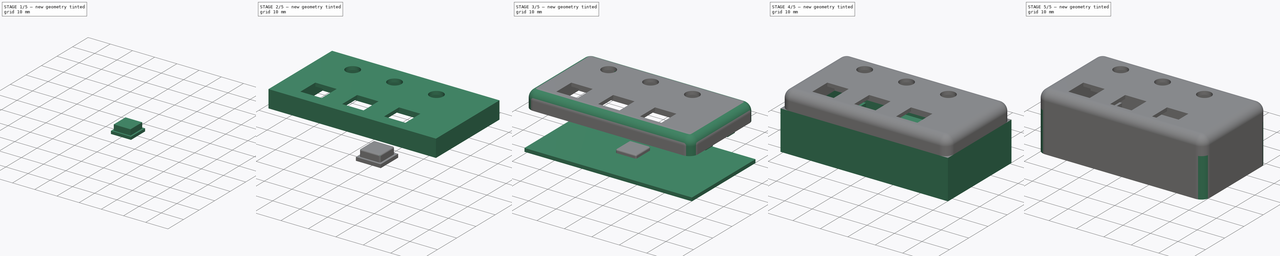
[diagram: build sequence overview — one tinted view per stage of 5, left to right]
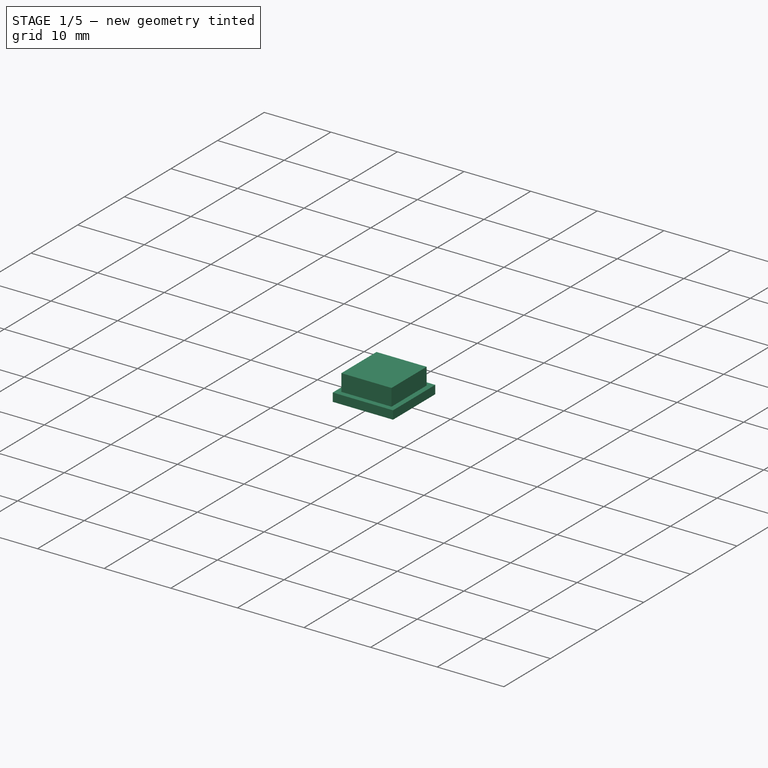
[diagram: stage 1 of 5 — iso view after this stage's code; geometry added in this stage tinted green]
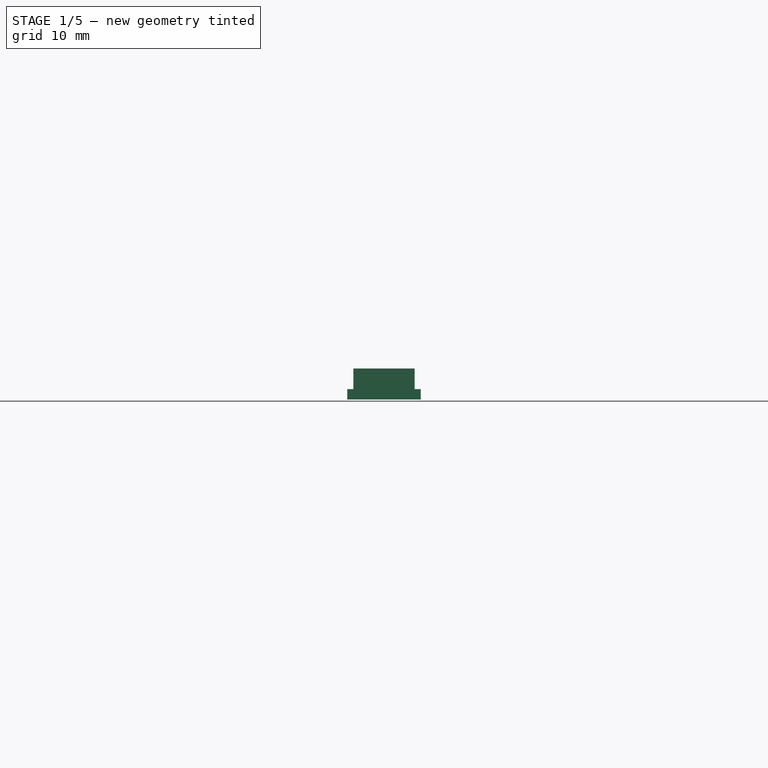
[diagram: stage 1 of 5 — front view after this stage's code; geometry added in this stage tinted green]
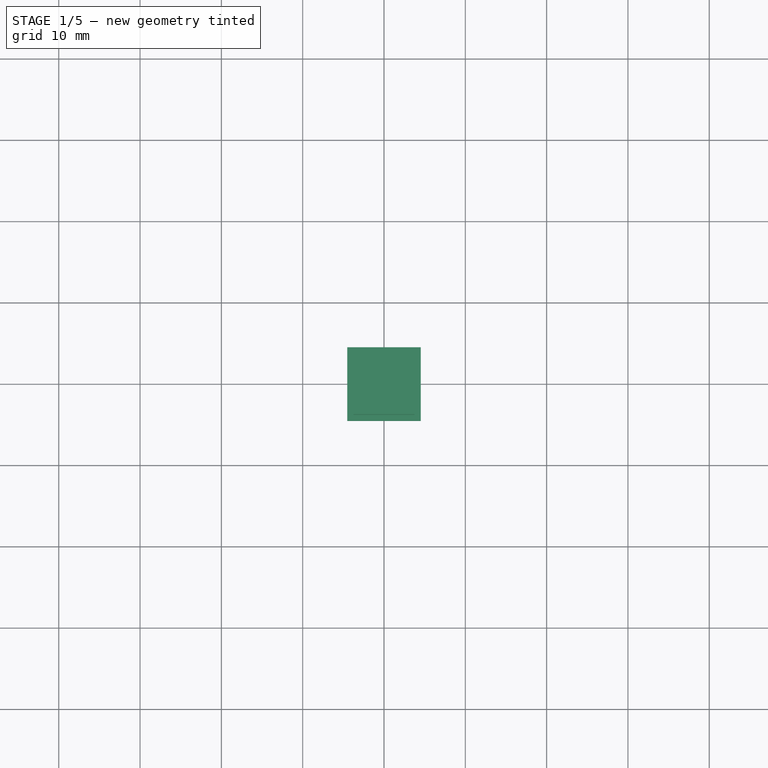
[diagram: stage 1 of 5 — top view after this stage's code; geometry added in this stage tinted green]
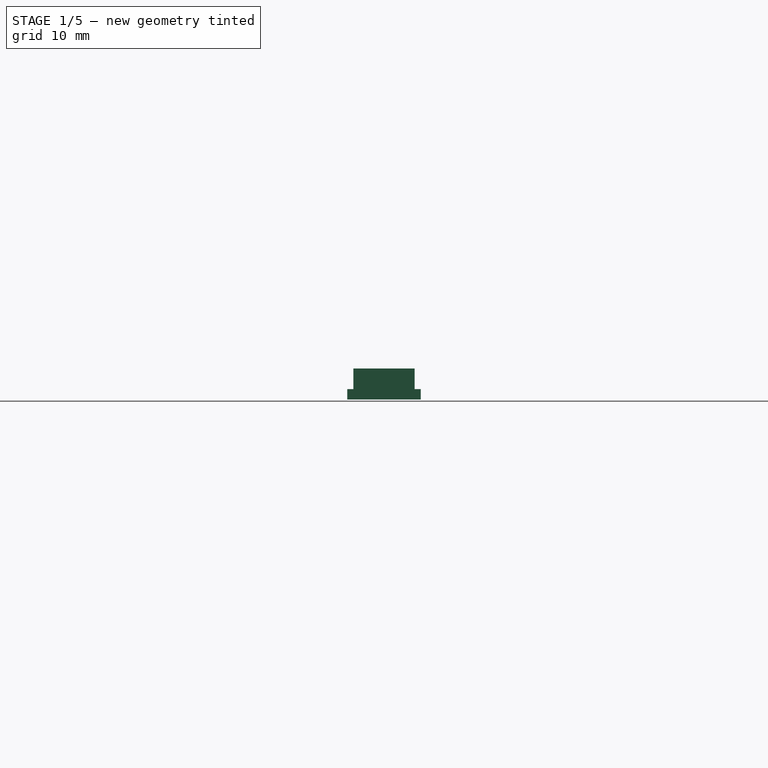
[diagram: stage 1 of 5 — right view after this stage's code; geometry added in this stage tinted green]
FCSTD DOCUMENT  (FreeCAD 0.21R33771 (Git))
Label: remote
License: All rights reserved
LicenseURL: http://en.wikipedia.org/wiki/All_rights_reserved
objects: Sketcher::SketchObject×14, PartDesign::Pad×10, PartDesign::Fillet×4, PartDesign::Body×3, PartDesign::Pocket×2, PartDesign::ShapeBinder×2, PartDesign::Plane×1, PartDesign::Chamfer×1, Spreadsheet::Sheet×1
note: 54 computed .brp shape members not serialized (recipe doc carries the construction recipe); baked Part::Feature solids carry a one-line shape summary decoded from their .brp

FEATURE [PartDesign::Body] Body001  label="Top"
  Group = -> [ShapeBinder,ShapeBinder001,DatumPlane,Sketch006,Pad003,Sketch007,Pad004,Sketch008,Pad005,Sketch010,Pad006,Fillet002]
  Origin = -> Origin001
  Tip = -> Fillet002
FEATURE [Sketcher::SketchObject] Sketch011
  FullyConstrained = true
  MapMode = 5
  Support = -> [XY_Plane002]
  expr: Constraints[18] = <<Measurements>>.switch_h + <<Measurements>>.fit_margin
  expr: Constraints[19] = <<Measurements>>.switch_w + <<Measurements>>.fit_margin
  expr: Constraints[20] = <<Measurements>>.btn_hole_h + <<Measurements>>.wall_t
  expr: Constraints[21] = <<Measurements>>.btn_hole_w + <<Measurements>>.wall_t
  sketch-geometry (8):
    g0: LineSegment StartX=-4.524 StartY=4.524 StartZ=0 EndX=4.524 EndY=4.524 EndZ=0
    g1: LineSegment StartX=4.524 StartY=4.524 StartZ=0 EndX=4.524 EndY=-4.524 EndZ=0
    g2: LineSegment StartX=4.524 StartY=-4.524 StartZ=0 EndX=-4.524 EndY=-4.524 EndZ=0
    g3: LineSegment StartX=-4.524 StartY=-4.524 StartZ=0 EndX=-4.524 EndY=4.524 EndZ=0
    g4: LineSegment StartX=-3.127 StartY=3.127 StartZ=0 EndX=3.127 EndY=3.127 EndZ=0
    g5: LineSegment StartX=3.127 StartY=3.127 StartZ=0 EndX=3.127 EndY=-3.127 EndZ=0
    g6: LineSegment StartX=3.127 StartY=-3.127 StartZ=0 EndX=-3.127 EndY=-3.127 EndZ=0
    g7: LineSegment StartX=-3.127 StartY=-3.127 StartZ=0 EndX=-3.127 EndY=3.127 EndZ=0
  constraints (22):
    c: Coincident(g0,g1)
    c: Coincident(g1,g2)
    c: Coincident(g2,g3)
    c: Coincident(g3,g0)
    c: Horizontal(g0)
    c: Horizontal(g2)
    c: Vertical(g1)
    c: Vertical(g3)
    c: Coincident(g4,g5)
    c: Coincident(g5,g6)
    c: Coincident(g6,g7)
    c: Coincident(g7,g4)
    c: Horizontal(g4)
    c: Horizontal(g6)
    c: Vertical(g5)
    c: Vertical(g7)
    c: Symmetric(g4,g6,g-1)
    c: Symmetric(g0,g2,g-1)
    c: Distance(g5) = 6.254
    c: Distance(g4) = 6.254
    c: Distance(g1) = 9.048
    c: Distance(g0) = 9.048
FEATURE [PartDesign::Pad] Pad007  label="Btn Base"
  Direction = (0,0,1)
  Length = 1.27
  Length2 = 10
  Profile = -> Sketch011
  ReferenceAxis = -> Sketch011 [N_Axis]
  Reversed = true
  Type = 0
  expr: Length = <<Measurements>>.wall_t
FEATURE [Sketcher::SketchObject] Sketch012
  ExternalGeometry = -> [Sketch011]
  FullyConstrained = true
  MapMode = 5
  Support = -> [XY_Plane002]
  expr: Constraints[19] = <<Measurements>>.btn_hole_w - <<Measurements>>.fit_margin
  expr: Constraints[20] = <<Measurements>>.btn_hole_h - <<Measurements>>.fit_margin
  sketch-geometry (8):
    g0: LineSegment StartX=-3.127 StartY=-3.127 StartZ=0 EndX=3.127 EndY=-3.127 EndZ=0
    g1: LineSegment StartX=3.127 StartY=-3.127 StartZ=0 EndX=3.127 EndY=3.127 EndZ=0
    g2: LineSegment StartX=3.127 StartY=3.127 StartZ=0 EndX=-3.127 EndY=3.127 EndZ=0
    g3: LineSegment StartX=-3.127 StartY=3.127 StartZ=0 EndX=-3.127 EndY=-3.127 EndZ=0
    g4: LineSegment StartX=-3.762 StartY=-3.762 StartZ=0 EndX=3.762 EndY=-3.762 EndZ=0
    g5: LineSegment StartX=3.762 StartY=-3.762 StartZ=0 EndX=3.762 EndY=3.762 EndZ=0
    g6: LineSegment StartX=3.762 StartY=3.762 StartZ=0 EndX=-3.762 EndY=3.762 EndZ=0
    g7: LineSegment StartX=-3.762 StartY=3.762 StartZ=0 EndX=-3.762 EndY=-3.762 EndZ=0
  constraints (21):
    c: Coincident(g0,g1)
    c: Coincident(g1,g2)
    c: Coincident(g2,g3)
    c: Coincident(g3,g0)
    c: Horizontal(g0)
    c: Horizontal(g2)
    c: Vertical(g1)
    c: Vertical(g3)
    c: Coincident(g0,g-4)
    c: Coincident(g1,g-3)
    c: Coincident(g4,g5)
    c: Coincident(g5,g6)
    c: Coincident(g6,g7)
    c: Coincident(g7,g4)
    c: Horizontal(g4)
    c: Horizontal(g6)
    c: Vertical(g5)
    c: Vertical(g7)
    c: Symmetric(g5,g4,g-1)
    c: Distance(g6) = 7.524
    c: Distance(g5) = 7.524
FEATURE [PartDesign::Pad] Pad008  label="Btn Walls"
  BaseFeature = -> Pad007
  Direction = (0,0,1)
  Length = 2.54
  Length2 = 10
  Profile = -> Sketch012
  ReferenceAxis = -> Sketch012 [N_Axis]
  Type = 0
  expr: Length = <<Measurements>>.wall_t + <<Measurements>>.btn_prot
FEATURE [Sketcher::SketchObject] Sketch013
  ExternalGeometry = -> [Sketch012]
  FullyConstrained = true
  MapMode = 5
  Support = -> [XY_Plane002]
  sketch-geometry (4):
    g0: LineSegment StartX=3.762 StartY=3.762 StartZ=0 EndX=-3.762 EndY=3.762 EndZ=0
    g1: LineSegment StartX=-3.762 StartY=3.762 StartZ=0 EndX=-3.762 EndY=-3.762 EndZ=0
    g2: LineSegment StartX=-3.762 StartY=-3.762 StartZ=0 EndX=3.762 EndY=-3.762 EndZ=0
    g3: LineSegment StartX=3.762 StartY=-3.762 StartZ=0 EndX=3.762 EndY=3.762 EndZ=0
  constraints (10):
    c: Coincident(g0,g1)
    c: Coincident(g1,g2)
    c: Coincident(g2,g3)
    c: Coincident(g3,g0)
    c: Horizontal(g0)
    c: Horizontal(g2)
    c: Vertical(g1)
    c: Vertical(g3)
    c: Coincident(g0,g-3)
    c: Coincident(g1,g-4)
FEATURE [PartDesign::Pad] Pad009  label="Btn Cap"
  BaseFeature = -> Pad008
  Direction = (0,0,1)
  Length = 2.54
  Length2 = -1.27
  Profile = -> Sketch013
  ReferenceAxis = -> Sketch013 [N_Axis]
  Refine = true
  Type = 4
  expr: Length = <<Measurements>>.wall_t + <<Measurements>>.btn_prot
  expr: Length2 = -<<Measurements>>.btn_prot
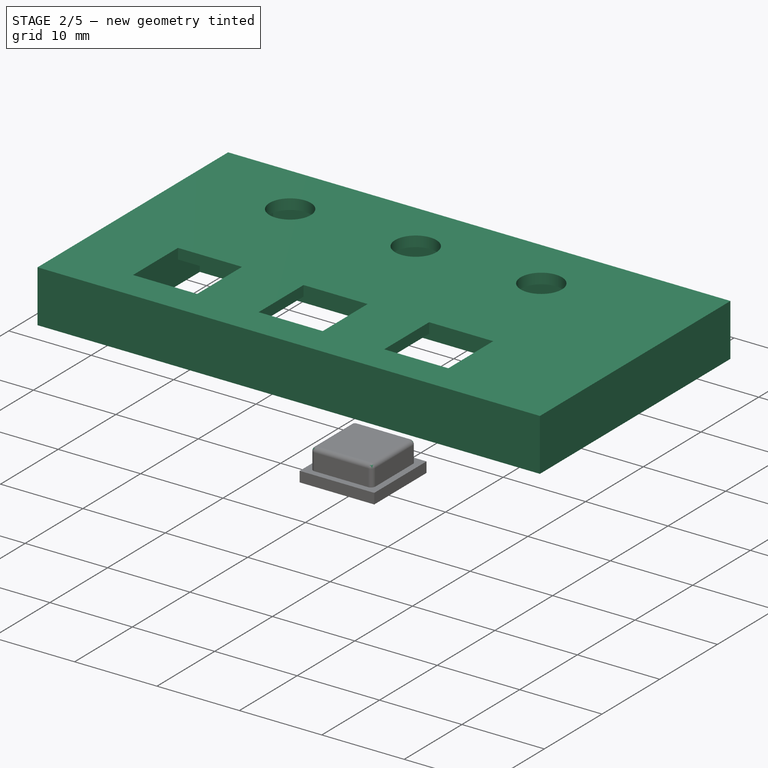
[diagram: stage 2 of 5 — iso view after this stage's code; geometry added in this stage tinted green]
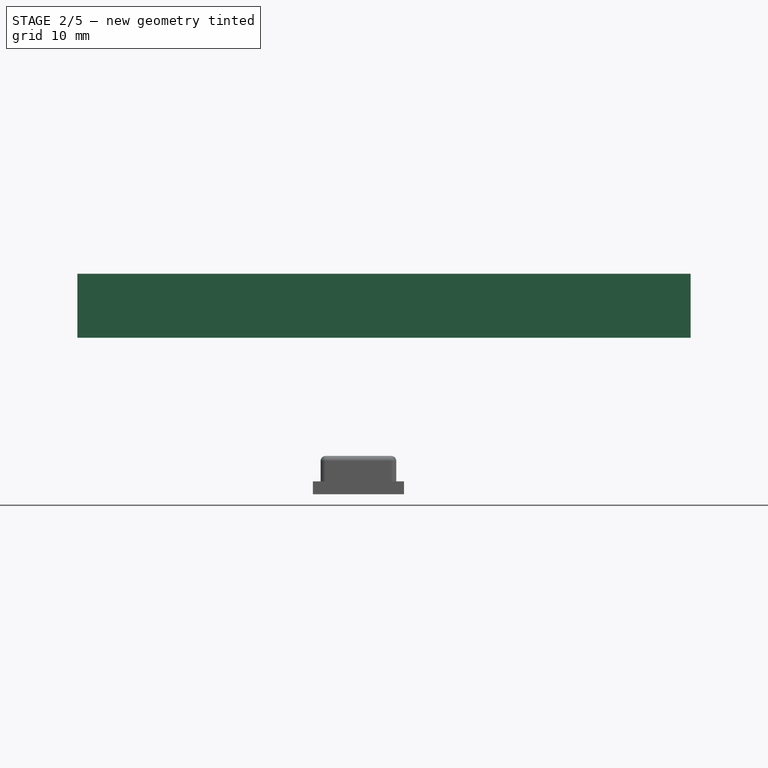
[diagram: stage 2 of 5 — front view after this stage's code; geometry added in this stage tinted green]
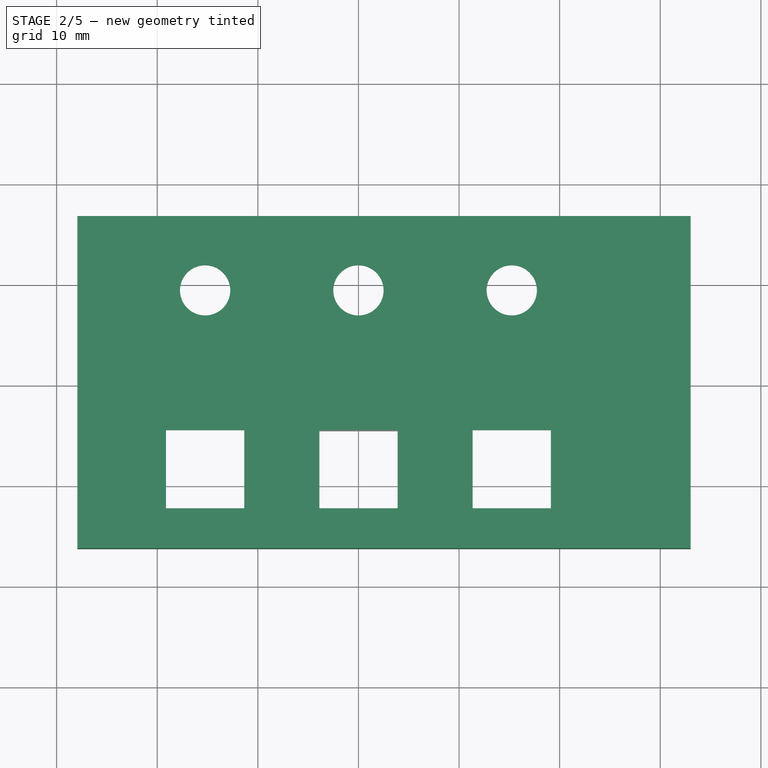
[diagram: stage 2 of 5 — top view after this stage's code; geometry added in this stage tinted green]
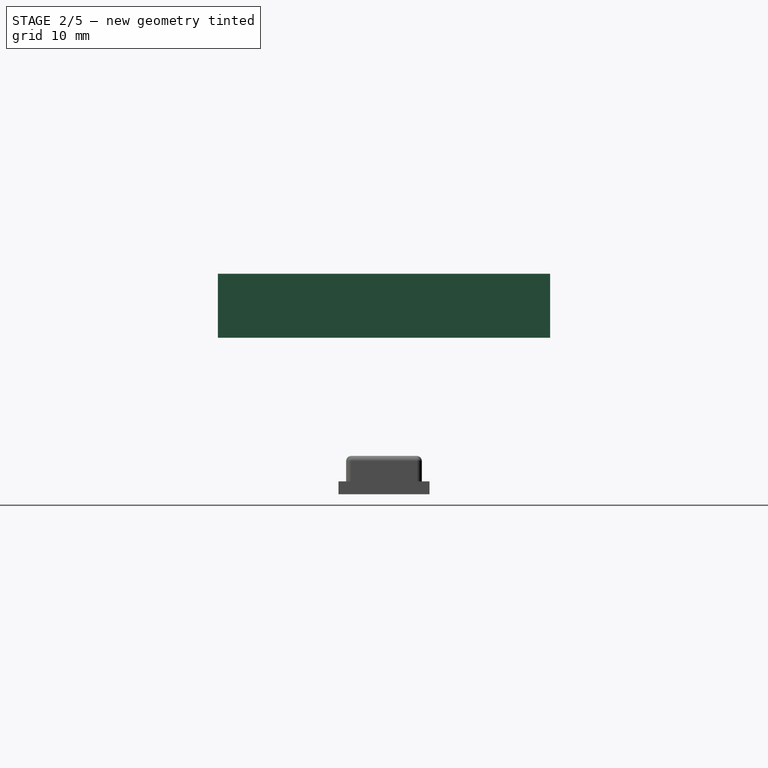
[diagram: stage 2 of 5 — right view after this stage's code; geometry added in this stage tinted green]
FEATURE [PartDesign::ShapeBinder] ShapeBinder  label="Button PCB Binder"
  Support = -> [Sketch005]
  TraceSupport = false
FEATURE [PartDesign::ShapeBinder] ShapeBinder001  label="Base Binder"
  Support = -> [Sketch001]
  TraceSupport = false
FEATURE [PartDesign::Plane] DatumPlane  label="Top Pl"
  AttachmentOffset = pos=(0,0,20.6375) rot=(0,0,1;0rad)
  Length = 72.0017
  MapMode = 2
  Placement = pos=(0,0,20.6375) rot=(0,0,1;0rad)
  ResizeMode = 0
  Support = -> [XY_Plane001]
  Width = 61.0417
  expr: .AttachmentOffset.Base.z = 0.3125 in + 0.25 in + 0.25 in
FEATURE [Sketcher::SketchObject] Sketch006  label="Top Sk"
  ExternalGeometry = -> [ShapeBinder001,ShapeBinder]
  FullyConstrained = true
  MapMode = 5
  Placement = pos=(0,0,20.6375) rot=(0,0,1;0rad)
  Support = -> [DatumPlane]
  expr: Constraints[58] = <<Measurements>>.btn_hole_h
  expr: Constraints[59] = <<Measurements>>.btn_hole_w
  sketch-geometry (25):
    g0: LineSegment StartX=-27.94 StartY=-16.51 StartZ=0 EndX=33.02 EndY=-16.51 EndZ=0
    g1: LineSegment StartX=33.02 StartY=-16.51 StartZ=0 EndX=33.02 EndY=16.51 EndZ=0
    g2: LineSegment StartX=33.02 StartY=16.51 StartZ=0 EndX=-27.94 EndY=16.51 EndZ=0
    g3: LineSegment StartX=-27.94 StartY=16.51 StartZ=0 EndX=-27.94 EndY=-16.51 EndZ=0
    g4: LineSegment StartX=-19.129 StartY=-4.76401 StartZ=0 EndX=-11.351 EndY=-4.76401 EndZ=0
    g5: LineSegment StartX=-11.351 StartY=-4.76401 StartZ=0 EndX=-11.351 EndY=-12.542 EndZ=0
    g6: LineSegment StartX=-11.351 StartY=-12.542 StartZ=0 EndX=-19.129 EndY=-12.542 EndZ=0
    g7: LineSegment StartX=-19.129 StartY=-12.542 StartZ=0 EndX=-19.129 EndY=-4.76401 EndZ=0
    g8: LineSegment StartX=-3.889 StartY=-4.76401 StartZ=0 EndX=3.889 EndY=-4.76401 EndZ=0
    g9: LineSegment StartX=3.889 StartY=-4.76401 StartZ=0 EndX=3.889 EndY=-12.542 EndZ=0
    g10: LineSegment StartX=3.889 StartY=-12.542 StartZ=0 EndX=-3.889 EndY=-12.542 EndZ=0
    g11: LineSegment StartX=-3.889 StartY=-12.542 StartZ=0 EndX=-3.889 EndY=-4.76401 EndZ=0
    g12: LineSegment StartX=11.351 StartY=-4.76401 StartZ=0 EndX=19.129 EndY=-4.76401 EndZ=0
    g13: LineSegment StartX=19.129 StartY=-4.76401 StartZ=0 EndX=19.129 EndY=-12.542 EndZ=0
    g14: LineSegment StartX=19.129 StartY=-12.542 StartZ=0 EndX=11.351 EndY=-12.542 EndZ=0
    g15: LineSegment StartX=11.351 StartY=-12.542 StartZ=0 EndX=11.351 EndY=-4.76401 EndZ=0
    g16: Circle CenterX=-15.24 CenterY=9.12699 CenterZ=0 NormalX=0 NormalY=0 NormalZ=1 AngleXU=0 Radius=2.5
    g17: Circle CenterX=1.7e-15 CenterY=9.12699 CenterZ=0 NormalX=0 NormalY=0 NormalZ=1 AngleXU=0 Radius=2.5
    g18: Circle CenterX=15.24 CenterY=9.12699 CenterZ=0 NormalX=0 NormalY=0 NormalZ=1 AngleXU=0 Radius=2.5
    g19: LineSegment StartX=-15.24 StartY=9.12699 StartZ=0 EndX=15.24 EndY=9.12699 EndZ=0
    g20: LineSegment StartX=-15.24 StartY=-4.84301 StartZ=0 EndX=-15.24 EndY=9.12699 EndZ=0
    g21: LineSegment StartX=15.24 StartY=-4.84301 StartZ=0 EndX=15.24 EndY=9.12699 EndZ=0
    g22: GeomPoint X=-15.24 Y=-8.65301 Z=0
    g23: GeomPoint X=-6e-16 Y=-8.65301 Z=0
    g24: GeomPoint X=15.24 Y=-8.65301 Z=0
  constraints (60):
    c: Coincident(g0,g1)
    c: Coincident(g1,g2)
    c: Coincident(g2,g3)
    c: Coincident(g3,g0)
    c: Horizontal(g0)
    c: Horizontal(g2)
    c: Vertical(g1)
    c: Vertical(g3)
    c: Coincident(g0,g-4)
    c: Coincident(g1,g-3)
    c: Coincident(g4,g5)
    c: Coincident(g5,g6)
    c: Coincident(g6,g7)
    c: Coincident(g7,g4)
    c: Horizontal(g4)
    c: Horizontal(g6)
    c: Vertical(g5)
    c: Vertical(g7)
    c: Coincident(g8,g9)
    c: Coincident(g9,g10)
    c: Coincident(g10,g11)
    c: Coincident(g11,g8)
    c: Horizontal(g8)
    c: Horizontal(g10)
    c: Vertical(g9)
    c: Vertical(g11)
    c: Coincident(g12,g13)
    c: Coincident(g13,g14)
    c: Coincident(g14,g15)
    c: Coincident(g15,g12)
    c: Horizontal(g12)
    c: Horizontal(g14)
    c: Vertical(g13)
    c: Vertical(g15)
    c: Equal(g5,g11)
    c: Equal(g5,g15)
    c: Coincident(g19,g16)
    c: Coincident(g19,g18)
    c: Horizontal(g19)
    c: Diameter(g18) = 5
    c: Diameter(g17) = 5
    c: Diameter(g16) = 5
    c: Vertical(g20)
    c: Coincident(g21,g18)
    c: Vertical(g21)
    c: Coincident(g16,g20)
    c: Symmetric(g16,g18,g17)
    c: Symmetric(g-9,g-9,g21)
    c: Symmetric(g-5,g-5,g20)
    c: Distance(g17,g-7) = 13.97
    c: Equal(g6,g10)
    c: Equal(g6,g14)
    c: Symmetric(g-9,g-10,g24)
    c: Symmetric(g-6,g-5,g22)
    c: Symmetric(g-8,g-7,g23)
    c: Symmetric(g4,g6,g22)
    c: Symmetric(g10,g8,g23)
    c: Symmetric(g14,g12,g24)
    c: Distance(g5) = 7.778
    c: Distance(g4) = 7.778
FEATURE [PartDesign::Pad] Pad003  label="Top Pd"
  Direction = (0,0,1)
  Length = 1.27
  Length2 = 10
  Placement = pos=(0,0,20.6375) rot=(0,0,1;0rad)
  Profile = -> Sketch006
  ReferenceAxis = -> Sketch006 [N_Axis]
  Reversed = true
  Type = 0
FEATURE [Sketcher::SketchObject] Sketch007
  ExternalGeometry = -> [ShapeBinder,ShapeBinder001]
  FullyConstrained = true
  MapMode = 5
  Placement = pos=(0,0,20.6375) rot=(0,0,1;0rad)
  Support = -> [DatumPlane]
  sketch-geometry (8):
    g0: LineSegment StartX=-21.924 StartY=3.01399 StartZ=0 EndX=22.78 EndY=3.01399 EndZ=0
    g1: LineSegment StartX=22.78 StartY=3.01399 StartZ=0 EndX=22.78 EndY=-15.24 EndZ=0
    g2: LineSegment StartX=-21.924 StartY=-15.24 StartZ=0 EndX=-21.924 EndY=3.01399 EndZ=0
    g3: LineSegment StartX=-19.384 StartY=1.74399 StartZ=0 EndX=20.24 EndY=1.74399 EndZ=0
    g4: LineSegment StartX=20.24 StartY=1.74399 StartZ=0 EndX=20.24 EndY=-15.24 EndZ=0
    g5: LineSegment StartX=-19.384 StartY=-15.24 StartZ=0 EndX=-19.384 EndY=1.74399 EndZ=0
    g6: LineSegment StartX=-21.924 StartY=-15.24 StartZ=0 EndX=-19.384 EndY=-15.24 EndZ=0
    g7: LineSegment StartX=20.24 StartY=-15.24 StartZ=0 EndX=22.78 EndY=-15.24 EndZ=0
  constraints (21):
    c: Coincident(g0,g1)
    c: Coincident(g2,g0)
    c: Horizontal(g0)
    c: Vertical(g1)
    c: Coincident(g0,g-3)
    c: Coincident(g1,g-4)
    c: Coincident(g3,g4)
    c: Coincident(g5,g3)
    c: Horizontal(g3)
    c: Vertical(g4)
    c: Vertical(g5)
    c: Distance(g3,g1) = 2.54
    c: Distance(g3,g2) = 2.54
    c: Distance(g3,g0) = 1.27
    c: Coincident(g2,g-4)
    c: PointOnObject(g5,g-4)
    c: Coincident(g6,g2)
    c: Coincident(g6,g5)
    c: Coincident(g7,g4)
    c: Coincident(g7,g1)
    c: Horizontal(g7)
FEATURE [PartDesign::Pad] Pad004  label="PCB Support"
  BaseFeature = -> Pad003
  Direction = (0,0,1)
  Length = 3.6068
  Length2 = 10
  Placement = pos=(0,0,20.6375) rot=(0,0,1;0rad)
  Profile = -> Sketch007
  ReferenceAxis = -> Sketch007 [N_Axis]
  Reversed = true
  Type = 0
  expr: Length = 0.142 in
FEATURE [Sketcher::SketchObject] Sketch008
  ExternalGeometry = -> [ShapeBinder001,ShapeBinder]
  FullyConstrained = true
  MapMode = 5
  Placement = pos=(0,0,20.6375) rot=(0,0,1;0rad)
  Support = -> [DatumPlane]
  expr: Constraints[29] = <<Measurements>>.wall_t
  expr: Constraints[30] = <<Measurements>>.wall_t
  expr: Constraints[31] = <<Measurements>>.bolt_maj_dia * 1.5
  expr: Constraints[41] = <<Measurements>>.bolt_inset * 2
  expr: Constraints[46] = <<Measurements>>.wall_t
  expr: Constraints[49] = <<Measurements>>.wall_t
  expr: Constraints[50] = <<Measurements>>.wall_t
  expr: Constraints[54] = <<Measurements>>.bolt_inset
  expr: Constraints[55] = <<Measurements>>.bolt_inset
  expr: Constraints[56] = <<Measurements>>.bolt_pitch_dia
  expr: Constraints[57] = <<Measurements>>.bolt_pitch_dia
  expr: Constraints[58] = <<Measurements>>.bolt_pitch_dia
  expr: Constraints[59] = <<Measurements>>.bolt_pitch_dia
  expr: Constraints[60] = <<Measurements>>.bolt_pitch_dia
  expr: Constraints[62] = <<Measurements>>.bolt_maj_dia * 0.75
  expr: Constraints[63] = <<Measurements>>.bolt_pitch_dia
  expr: Constraints[70] = <<Measurements>>.bolt_inset * 2
  expr: Constraints[83] = <<Measurements>>.bolt_inset
  expr: Constraints[84] = <<Measurements>>.bolt_inset
  sketch-geometry (45):
    g0: LineSegment StartX=-27.94 StartY=-16.51 StartZ=0 EndX=33.02 EndY=-16.51 EndZ=0
    g1: LineSegment StartX=33.02 StartY=-16.51 StartZ=0 EndX=33.02 EndY=16.51 EndZ=0
    g2: LineSegment StartX=33.02 StartY=16.51 StartZ=0 EndX=-27.94 EndY=16.51 EndZ=0
    g3: LineSegment StartX=-27.94 StartY=16.51 StartZ=0 EndX=-27.94 EndY=-16.51 EndZ=0
    g4: LineSegment StartX=-21.59 StartY=15.24 StartZ=0 EndX=26.67 EndY=15.24 EndZ=0
    g5: LineSegment StartX=31.75 StartY=10.16 StartZ=0 EndX=31.75 EndY=-10.16 EndZ=0
    g6: LineSegment StartX=-26.67 StartY=-10.16 StartZ=0 EndX=-26.67 EndY=10.16 EndZ=0
    g7: LineSegment StartX=-23.194 StartY=6.01399 StartZ=0 EndX=-17.78 EndY=6.01399 EndZ=0
    g8: LineSegment StartX=24.05 StartY=6.01399 StartZ=0 EndX=24.05 EndY=-15.24 EndZ=0
    g9: LineSegment StartX=-23.194 StartY=-10.16 StartZ=0 EndX=-23.194 EndY=6.01399 EndZ=0
    g10: LineSegment StartX=-21.924 StartY=3.01399 StartZ=0 EndX=-17.78 EndY=3.01399 EndZ=0
    g11: LineSegment StartX=22.78 StartY=3.01399 StartZ=0 EndX=22.78 EndY=-15.24 EndZ=0
    g12: LineSegment StartX=-21.924 StartY=-15.24 StartZ=0 EndX=-21.924 EndY=3.01399 EndZ=0
    g13: LineSegment StartX=22.78 StartY=-15.24 StartZ=0 EndX=-21.924 EndY=-15.24 EndZ=0
    g14: LineSegment StartX=24.05 StartY=-15.24 StartZ=0 EndX=26.67 EndY=-15.24 EndZ=0
    g15: LineSegment StartX=-21.59 StartY=15.24 StartZ=0 EndX=-21.59 EndY=10.16 EndZ=0
    g16: LineSegment StartX=-21.59 StartY=10.16 StartZ=0 EndX=-26.67 EndY=10.16 EndZ=0
    g17: LineSegment StartX=26.67 StartY=15.24 StartZ=0 EndX=26.67 EndY=10.16 EndZ=0
    g18: LineSegment StartX=26.67 StartY=10.16 StartZ=0 EndX=31.75 EndY=10.16 EndZ=0
    g19: LineSegment StartX=26.67 StartY=-15.24 StartZ=0 EndX=26.67 EndY=-10.16 EndZ=0
    g20: LineSegment StartX=26.67 StartY=-10.16 StartZ=0 EndX=31.75 EndY=-10.16 EndZ=0
    g21: LineSegment StartX=-26.67 StartY=-10.16 StartZ=0 EndX=-23.194 EndY=-10.16 EndZ=0
    g22: Circle CenterX=-24.765 CenterY=13.335 CenterZ=0 NormalX=0 NormalY=0 NormalZ=1 AngleXU=0 Radius=0.87
    g23: Circle CenterX=29.845 CenterY=13.335 CenterZ=0 NormalX=0 NormalY=0 NormalZ=1 AngleXU=0 Radius=0.87
    g24: Circle CenterX=29.845 CenterY=-13.335 CenterZ=0 NormalX=0 NormalY=0 NormalZ=1 AngleXU=0 Radius=0.87
    g25: Circle CenterX=-24.765 CenterY=-13.335 CenterZ=0 NormalX=0 NormalY=0 NormalZ=1 AngleXU=0 Radius=0.87
    g26: Circle CenterX=-19.384 CenterY=4.51399 CenterZ=0 NormalX=0 NormalY=0 NormalZ=1 AngleXU=0 Radius=0.87
    g27: Circle CenterX=20.24 CenterY=4.51399 CenterZ=0 NormalX=0 NormalY=0 NormalZ=1 AngleXU=0 Radius=0.87
    g28: LineSegment StartX=-24.765 StartY=13.335 StartZ=0 EndX=29.845 EndY=13.335 EndZ=0
    g29: LineSegment StartX=29.845 StartY=13.335 StartZ=0 EndX=29.845 EndY=-13.335 EndZ=0
    g30: LineSegment StartX=29.845 StartY=-13.335 StartZ=0 EndX=-24.765 EndY=-13.335 EndZ=0
    g31: LineSegment StartX=-24.765 StartY=-13.335 StartZ=0 EndX=-24.765 EndY=13.335 EndZ=0
    g32: LineSegment StartX=-19.384 StartY=4.51399 StartZ=0 EndX=20.24 EndY=4.51399 EndZ=0
    g33: LineSegment StartX=-17.78 StartY=3.01399 StartZ=0 EndX=-17.78 EndY=6.01399 EndZ=0
    g34: LineSegment StartX=-12.7 StartY=6.01399 StartZ=0 EndX=-12.7 EndY=3.01399 EndZ=0
    g35: LineSegment StartX=-2.54 StartY=6.01399 StartZ=0 EndX=-2.54 EndY=3.01399 EndZ=0
    g36: LineSegment StartX=2.54 StartY=6.01399 StartZ=0 EndX=2.54 EndY=3.01399 EndZ=0
    g37: LineSegment StartX=12.7 StartY=6.01399 StartZ=0 EndX=12.7 EndY=3.01399 EndZ=0
    g38: LineSegment StartX=17.78 StartY=3.01399 StartZ=0 EndX=17.78 EndY=6.01399 EndZ=0
    g39: LineSegment StartX=17.78 StartY=6.01399 StartZ=0 EndX=24.05 EndY=6.01399 EndZ=0
    g40: LineSegment StartX=17.78 StartY=3.01399 StartZ=0 EndX=22.78 EndY=3.01399 EndZ=0
    g41: LineSegment StartX=2.54 StartY=6.01399 StartZ=0 EndX=12.7 EndY=6.01399 EndZ=0
    g42: LineSegment StartX=2.54 StartY=3.01399 StartZ=0 EndX=12.7 EndY=3.01399 EndZ=0
    g43: LineSegment StartX=-12.7 StartY=3.01399 StartZ=0 EndX=-2.54 EndY=3.01399 EndZ=0
    g44: LineSegment StartX=-12.7 StartY=6.01399 StartZ=0 EndX=-2.54 EndY=6.01399 EndZ=0
  constraints (124):
    c: Coincident(g0,g1)
    c: Coincident(g1,g2)
    c: Coincident(g2,g3)
    c: Coincident(g3,g0)
    c: Horizontal(g0)
    c: Horizontal(g2)
    c: Vertical(g1)
    c: Vertical(g3)
    c: Coincident(g0,g-6)
    c: Coincident(g1,g-3)
    c: Horizontal(g4)
    c: Vertical(g5)
    c: Vertical(g6)
    c: Coincident(g39,g8)
    c: Coincident(g9,g7)
    c: Horizontal(g7)
    c: Vertical(g8)
    c: Vertical(g9)
    c: Coincident(g40,g11)
    c: Coincident(g12,g10)
    c: Coincident(g10,g-4)
    c: Coincident(g40,g-4)
    c: Coincident(g12,g-5)
    c: Coincident(g-5,g11)
    c: Coincident(g13,g11)
    c: Coincident(g13,g12)
    c: Coincident(g14,g8)
    c: Horizontal(g14)
    c: PointOnObject(g8,g13)
    c: Distance(g40,g8) = 1.27
    c: Distance(g10,g9) = 1.27
    c: Distance(g10,g7) = 3
    c: Coincident(g15,g16)
    c: Horizontal(g16)
    c: Vertical(g15)
    c: Coincident(g17,g18)
    c: Horizontal(g18)
    c: Vertical(g17)
    c: Coincident(g19,g20)
    c: Horizontal(g20)
    c: Vertical(g19)
    c: Distance(g6,g0) = 6.35
    c: Coincident(g21,g6)
    c: Horizontal(g21)
    c: Coincident(g9,g21)
    c: Coincident(g16,g6)
    c: Distance(g6,g3) = 1.27
    c: Coincident(g4,g15)
    c: Coincident(g4,g17)
    c: Distance(g4,g2) = 1.27
    c: Distance(g5,g1) = 1.27
    c: Coincident(g18,g5)
    c: Coincident(g14,g19)
    c: Coincident(g20,g5)
    c: Distance(g22,g2) = 3.175
    c: Distance(g22,g3) = 3.175
    c: Diameter(g22) = 1.74
    c: Diameter(g23) = 1.74
    c: Diameter(g24) = 1.74
    c: Diameter(g25) = 1.74
    c: Diameter(g26) = 1.74
    c: Distance(g26,g12) = 2.54
    c: Distance(g26,g10) = 1.5
    c: Diameter(g27) = 1.74
    c: Distance(g27,g11) = 2.54
    c: Equal(g15,g17)
    c: Equal(g15,g16)
    c: Equal(g17,g18)
    c: Equal(g18,g20)
    c: Equal(g20,g19)
    c: Distance(g4,g3) = 6.35
    c: Coincident(g28,g22)
    c: Coincident(g28,g23)
    c: Horizontal(g28)
    c: Coincident(g29,g23)
    c: Coincident(g29,g24)
    c: Vertical(g29)
    c: Coincident(g30,g24)
    c: Coincident(g30,g25)
    c: Horizontal(g30)
    c: Coincident(g31,g25)
    c: Coincident(g31,g22)
    c: Vertical(g31)
    c: Distance(g24,g1) = 3.175
    c: Distance(g24,g0) = 3.175
    c: Coincident(g32,g26)
    c: Horizontal(g32)
    c: Coincident(g27,g32)
    c: Vertical(g33)
    c: PointOnObject(g-7,g33)
    c: Vertical(g34)
    c: Vertical(g35)
    c: Vertical(g36)
    c: Vertical(g37)
    c: Vertical(g38)
    c: PointOnObject(g-7,g34)
    c: PointOnObject(g-8,g35)
    c: PointOnObject(g-8,g36)
    c: PointOnObject(g-9,g37)
    c: PointOnObject(g-9,g38)
    c: Coincident(g41,g37)
    c: Coincident(g39,g38)
    c: Coincident(g42,g37)
    c: Coincident(g40,g38)
    c: Coincident(g44,g35)
    c: Coincident(g41,g36)
    c: Coincident(g43,g35)
    c: Coincident(g42,g36)
    c: Coincident(g10,g33)
    c: Coincident(g43,g34)
    c: Coincident(g7,g33)
    c: Coincident(g44,g34)
    c: PointOnObject(g34,g7)
    c: PointOnObject(g36,g7)
    c: PointOnObject(g38,g7)
    c: Horizontal(g44)
    c: Horizontal(g41)
    c: Horizontal(g39)
    c: PointOnObject(g10,g-4)
    c: PointOnObject(g34,g-4)
    c: PointOnObject(g36,g-4)
    c: Horizontal(g43)
    c: Horizontal(g42)
    c: Horizontal(g40)
FEATURE [PartDesign::Pad] Pad005  label="Top Wall"
  BaseFeature = -> Pad004
  Direction = (0,0,1)
  Length = 6.35
  Length2 = 10
  Placement = pos=(0,0,20.6375) rot=(0,0,1;0rad)
  Profile = -> Sketch008
  ReferenceAxis = -> Sketch008 [N_Axis]
  Reversed = true
  Type = 0
FEATURE [PartDesign::Fillet] Fillet003
  Base = -> Pad009 [Edge26,Edge24,Edge23,Edge21,Face16]
  BaseFeature = -> Pad009
  Radius = 0.508
  SupportTransform = false
  UseAllEdges = false
  expr: Radius = <<Measurements>>.fit_margin * 2
FEATURE [PartDesign::Body] Body002  label="Button"
  Group = -> [Sketch011,Pad007,Sketch012,Pad008,Sketch013,Pad009,Fillet003]
  Origin = -> Origin002
  Tip = -> Fillet003
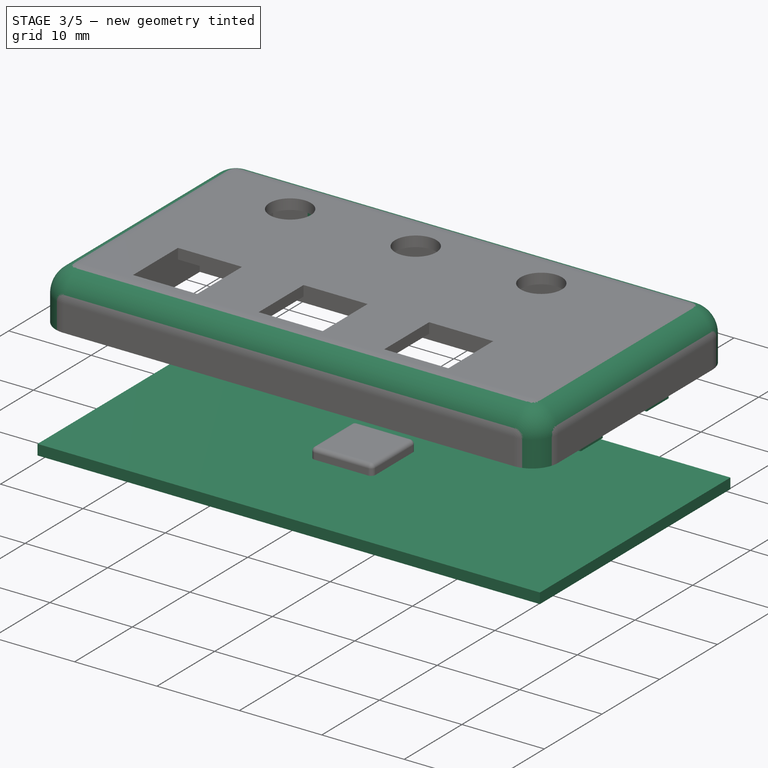
[diagram: stage 3 of 5 — iso view after this stage's code; geometry added in this stage tinted green]
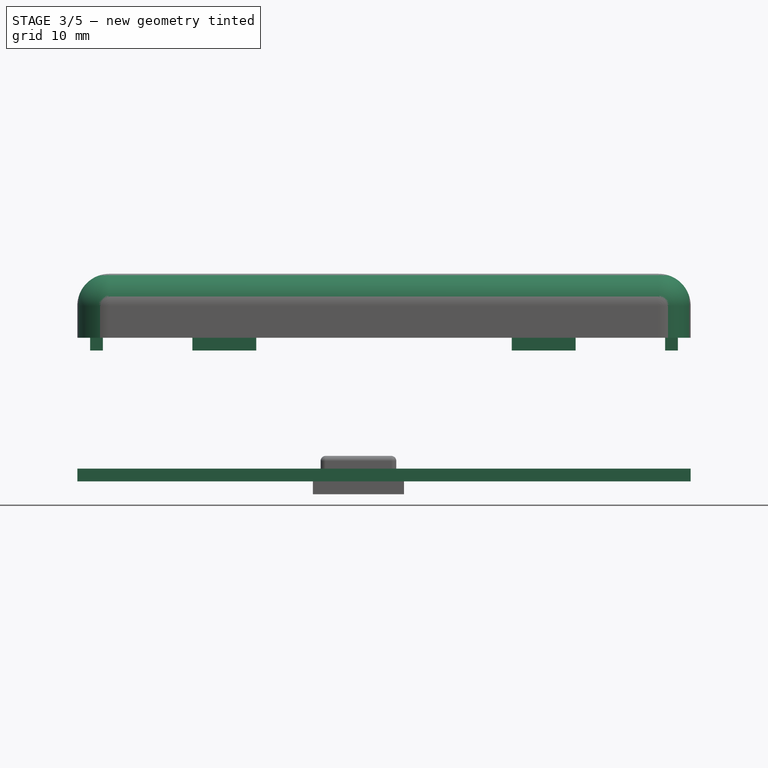
[diagram: stage 3 of 5 — front view after this stage's code; geometry added in this stage tinted green]
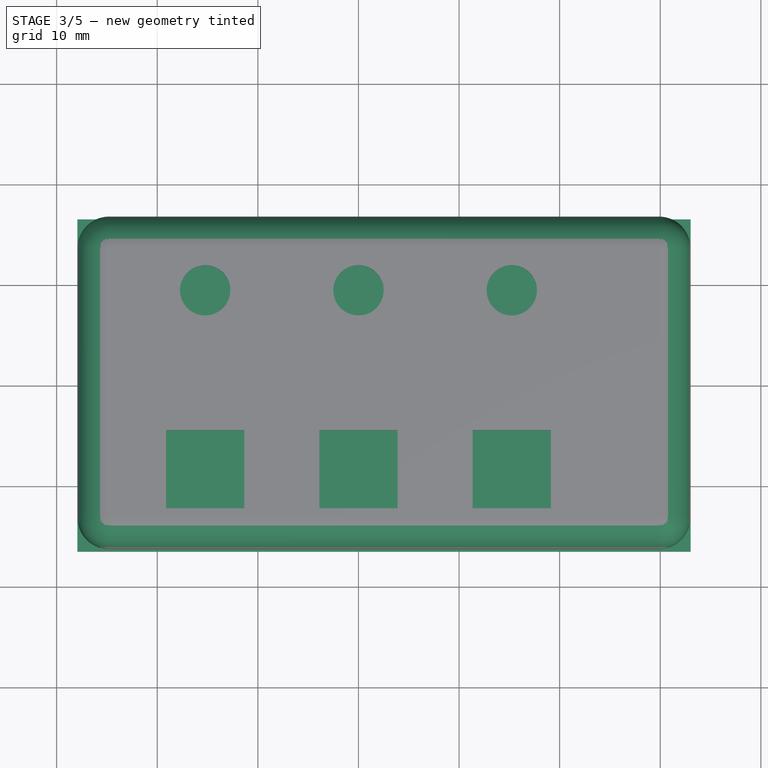
[diagram: stage 3 of 5 — top view after this stage's code; geometry added in this stage tinted green]
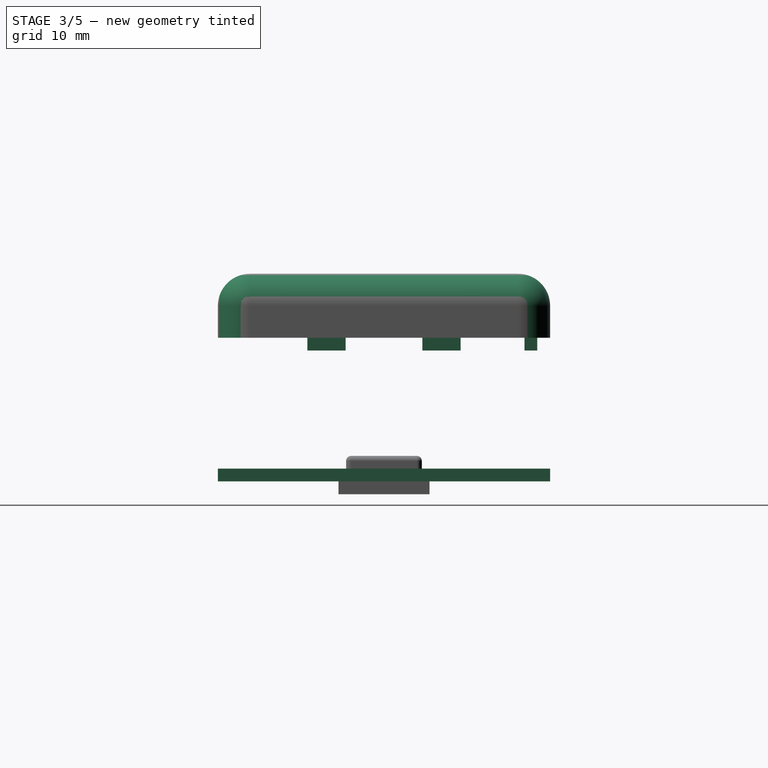
[diagram: stage 3 of 5 — right view after this stage's code; geometry added in this stage tinted green]
FEATURE [Sketcher::SketchObject] Sketch  label="PCB Sk"
  FullyConstrained = true
  MapMode = 5
  Support = -> [XY_Plane]
  sketch-geometry (13):
    g0: Circle CenterX=-22.86 CenterY=7.62 CenterZ=0 NormalX=0 NormalY=0 NormalZ=1 AngleXU=0 Radius=1.27
    g1: Circle CenterX=-22.86 CenterY=-10.16 CenterZ=0 NormalX=0 NormalY=0 NormalZ=1 AngleXU=0 Radius=1.27
    g2: Circle CenterX=22.86 CenterY=7.62 CenterZ=0 NormalX=0 NormalY=0 NormalZ=1 AngleXU=0 Radius=1.27
    g3: Circle CenterX=22.86 CenterY=-10.16 CenterZ=0 NormalX=0 NormalY=0 NormalZ=1 AngleXU=0 Radius=1.27
    g4: LineSegment StartX=-22.86 StartY=10.16 StartZ=0 EndX=22.86 EndY=10.16 EndZ=0
    g5: LineSegment StartX=-22.86 StartY=-12.7 StartZ=0 EndX=22.86 EndY=-12.7 EndZ=0
    g6: LineSegment StartX=25.4 StartY=-10.16 StartZ=0 EndX=25.4 EndY=7.62 EndZ=0
    g7: LineSegment StartX=-25.4 StartY=7.62 StartZ=0 EndX=-25.4 EndY=-10.16 EndZ=0
    g8: ArcOfCircle CenterX=-22.86 CenterY=7.62 CenterZ=0 NormalX=0 NormalY=0 NormalZ=1 AngleXU=0 Radius=2.54 StartAngle=1.5708 EndAngle=3.14159
    g9: ArcOfCircle CenterX=22.86 CenterY=7.62 CenterZ=0 NormalX=0 NormalY=0 NormalZ=1 AngleXU=0 Radius=2.54 StartAngle=1e-16 EndAngle=1.5708
    g10: ArcOfCircle CenterX=22.86 CenterY=-10.16 CenterZ=0 NormalX=0 NormalY=0 NormalZ=1 AngleXU=0 Radius=2.54 StartAngle=4.71239 EndAngle=6.28319
    g11: ArcOfCircle CenterX=-22.86 CenterY=-10.16 CenterZ=0 NormalX=0 NormalY=0 NormalZ=1 AngleXU=0 Radius=2.54 StartAngle=3.14159 EndAngle=4.71239
    g12: LineSegment StartX=-22.86 StartY=7.62 StartZ=0 EndX=-22.86 EndY=-10.16 EndZ=0
  constraints (28):
    c: Symmetric(g0,g2,g-2)
    c: Distance(g1,g0) = 17.78
    c: Distance(g0,g2) = 45.72
    c: Radius(g2) = 1.27
    c: Radius(g3) = 1.27
    c: Radius(g0) = 1.27
    c: Radius(g1) = 1.27
    c: Horizontal(g4)
    c: Horizontal(g5)
    c: Vertical(g6)
    c: Coincident(g8,g0)
    c: Coincident(g9,g2)
    c: Coincident(g10,g3)
    c: Coincident(g11,g1)
    c: Tangent(g8,g4) = 1.5708
    c: Tangent(g8,g7) = -1.5708
    c: Tangent(g11,g7) = -1.5708
    c: Tangent(g11,g5) = -1.5708
    c: Tangent(g10,g5) = -1.5708
    c: Tangent(g10,g6) = -1.5708
    c: Tangent(g9,g6) = -1.5708
    c: Tangent(g9,g4) = 1.5708
    c: Distance(g7,g6) = 50.8
    c: Symmetric(g1,g3,g-2)
    c: Coincident(g12,g0)
    c: Coincident(g12,g1)
    c: Vertical(g12)
    c: Distance(g-1,g4) = 10.16
FEATURE [Sketcher::SketchObject] Sketch001  label="Base Sk"
  ExternalGeometry = -> [Sketch]
  FullyConstrained = true
  MapMode = 5
  Support = -> [XY_Plane]
  sketch-geometry (4):
    g0: LineSegment StartX=-27.94 StartY=-16.51 StartZ=0 EndX=33.02 EndY=-16.51 EndZ=0
    g1: LineSegment StartX=33.02 StartY=-16.51 StartZ=0 EndX=33.02 EndY=16.51 EndZ=0
    g2: LineSegment StartX=33.02 StartY=16.51 StartZ=0 EndX=-27.94 EndY=16.51 EndZ=0
    g3: LineSegment StartX=-27.94 StartY=16.51 StartZ=0 EndX=-27.94 EndY=-16.51 EndZ=0
  constraints (11):
    c: Coincident(g0,g1)
    c: Coincident(g1,g2)
    c: Coincident(g2,g3)
    c: Coincident(g3,g0)
    c: Horizontal(g0)
    c: Horizontal(g2)
    c: Vertical(g1)
    c: Distance(g2) = 60.96
    c: Distance(g1) = 33.02
    c: Symmetric(g2,g0,g-1)
    c: Distance(g-3,g3) = 5.08
FEATURE [PartDesign::Pad] Pad  label="Base"
  Direction = (0,0,1)
  Length = 1.27
  Length2 = 10
  Profile = -> Sketch001
  ReferenceAxis = -> Sketch001 [N_Axis]
  Type = 0
FEATURE [Sketcher::SketchObject] Sketch010
  ExternalGeometry = -> [Sketch008]
  FullyConstrained = true
  MapMode = 5
  Placement = pos=(0,0,20.6375) rot=(0,0,1;0rad)
  Support = -> [DatumPlane]
  expr: Constraints[52] = <<Measurements>>.wall_t
  sketch-geometry (24):
    g0: LineSegment StartX=-16.51 StartY=15.24 StartZ=0 EndX=-10.16 EndY=15.24 EndZ=0
    g1: LineSegment StartX=-10.16 StartY=15.24 StartZ=0 EndX=-10.16 EndY=13.97 EndZ=0
    g2: LineSegment StartX=-10.16 StartY=13.97 StartZ=0 EndX=-16.51 EndY=13.97 EndZ=0
    g3: LineSegment StartX=-16.51 StartY=13.97 StartZ=0 EndX=-16.51 EndY=15.24 EndZ=0
    g4: LineSegment StartX=15.24 StartY=15.24 StartZ=0 EndX=21.59 EndY=15.24 EndZ=0
    g5: LineSegment StartX=21.59 StartY=15.24 StartZ=0 EndX=21.59 EndY=13.97 EndZ=0
    g6: LineSegment StartX=21.59 StartY=13.97 StartZ=0 EndX=15.24 EndY=13.97 EndZ=0
    g7: LineSegment StartX=15.24 StartY=13.97 StartZ=0 EndX=15.24 EndY=15.24 EndZ=0
    g8: LineSegment StartX=31.75 StartY=7.62 StartZ=0 EndX=30.48 EndY=7.62 EndZ=0
    g9: LineSegment StartX=30.48 StartY=7.62 StartZ=0 EndX=30.48 EndY=3.81 EndZ=0
    g10: LineSegment StartX=30.48 StartY=3.81 StartZ=0 EndX=31.75 EndY=3.81 EndZ=0
    g11: LineSegment StartX=31.75 StartY=3.81 StartZ=0 EndX=31.75 EndY=7.62 EndZ=0
    g12: LineSegment StartX=31.75 StartY=-7.62 StartZ=0 EndX=30.48 EndY=-7.62 EndZ=0
    g13: LineSegment StartX=30.48 StartY=-7.62 StartZ=0 EndX=30.48 EndY=-3.81 EndZ=0
    g14: LineSegment StartX=30.48 StartY=-3.81 StartZ=0 EndX=31.75 EndY=-3.81 EndZ=0
    g15: LineSegment StartX=31.75 StartY=-3.81 StartZ=0 EndX=31.75 EndY=-7.62 EndZ=0
    g16: LineSegment StartX=-26.67 StartY=-7.62 StartZ=0 EndX=-25.4 EndY=-7.62 EndZ=0
    g17: LineSegment StartX=-25.4 StartY=-7.62 StartZ=0 EndX=-25.4 EndY=-3.81 EndZ=0
    g18: LineSegment StartX=-25.4 StartY=-3.81 StartZ=0 EndX=-26.67 EndY=-3.81 EndZ=0
    g19: LineSegment StartX=-26.67 StartY=3.81 StartZ=0 EndX=-25.4 EndY=3.81 EndZ=0
    g20: LineSegment StartX=-25.4 StartY=3.81 StartZ=0 EndX=-25.4 EndY=7.62 EndZ=0
    g21: LineSegment StartX=-25.4 StartY=7.62 StartZ=0 EndX=-26.67 EndY=7.62 EndZ=0
    g22: LineSegment StartX=-26.67 StartY=7.62 StartZ=0 EndX=-26.67 EndY=3.81 EndZ=0
    g23: LineSegment StartX=-26.67 StartY=-3.81 StartZ=0 EndX=-26.67 EndY=-7.62 EndZ=0
  constraints (72):
    c: Coincident(g0,g1)
    c: Coincident(g1,g2)
    c: Coincident(g2,g3)
    c: Coincident(g3,g0)
    c: Horizontal(g0)
    c: Horizontal(g2)
    c: Vertical(g1)
    c: Vertical(g3)
    c: PointOnObject(g0,g-3)
    c: Coincident(g4,g5)
    c: Coincident(g5,g6)
    c: Coincident(g6,g7)
    c: Coincident(g7,g4)
    c: Horizontal(g4)
    c: Horizontal(g6)
    c: Vertical(g5)
    c: Vertical(g7)
    c: PointOnObject(g4,g-3)
    c: Coincident(g8,g9)
    c: Coincident(g9,g10)
    c: Coincident(g10,g11)
    c: Coincident(g11,g8)
    c: Horizontal(g8)
    c: Horizontal(g10)
    c: Vertical(g9)
    c: Vertical(g11)
    c: PointOnObject(g8,g-4)
    c: Coincident(g12,g13)
    c: Coincident(g13,g14)
    c: Coincident(g14,g15)
    c: Coincident(g15,g12)
    c: Horizontal(g12)
    c: Horizontal(g14)
    c: Vertical(g13)
    c: Vertical(g15)
    c: PointOnObject(g12,g-4)
    c: Coincident(g16,g17)
    c: Coincident(g17,g18)
    c: Horizontal(g16)
    c: Horizontal(g18)
    c: Vertical(g17)
    c: Coincident(g19,g20)
    c: Coincident(g20,g21)
    c: Horizontal(g19)
    c: Horizontal(g21)
    c: Vertical(g20)
    c: Equal(g2,g6)
    c: Equal(g7,g1)
    c: Equal(g5,g10)
    c: Equal(g10,g12)
    c: Equal(g19,g18)
    c: Equal(g19,g1)
    c: Distance(g3) = 1.27
    c: Equal(g20,g9)
    c: Equal(g13,g9)
    c: Equal(g17,g20)
    c: Distance(g0) = 6.35
    c: Distance(g0,g-3) = 5.08
    c: Distance(g-3,g4) = 5.08
    c: Distance(g-4,g8) = 2.54
    c: Distance(g11) = 3.81
    c: PointOnObject(g20,g8)
    c: Coincident(g22,g21)
    c: Coincident(g22,g19)
    c: Vertical(g22)
    c: Coincident(g23,g18)
    c: Coincident(g23,g16)
    c: Vertical(g23)
    c: PointOnObject(g17,g14)
    c: PointOnObject(g21,g-5)
    c: PointOnObject(g18,g-5)
    c: Distance(g-5,g16) = 2.54
FEATURE [PartDesign::Pad] Pad006  label="Alignment Pegs"
  BaseFeature = -> Pad005
  Direction = (0,0,1)
  Length = 7.62
  Length2 = 10
  Placement = pos=(0,0,20.6375) rot=(0,0,1;0rad)
  Profile = -> Sketch010
  ReferenceAxis = -> Sketch010 [N_Axis]
  Refine = true
  Reversed = true
  Type = 0
FEATURE [PartDesign::Body] Body  label="Bottom"
  Group = -> [Sketch,Sketch001,Pad,Sketch002,Pad001,Sketch003,Pocket,Sketch004,Pad002,Sketch005,Sketch009,Pocket001,Fillet001,Chamfer,Fillet]
  Origin = -> Origin
  Tip = -> Fillet
FEATURE [PartDesign::Fillet] Fillet002
  Base = -> Pad006 [Edge285,Edge282,Edge284,Edge280,Edge278,Edge279,Edge281,Edge283]
  BaseFeature = -> Pad006
  Placement = pos=(0,0,20.6375) rot=(0,0,1;0rad)
  Radius = 3.175
  SupportTransform = false
  UseAllEdges = false
  expr: Radius = <<Measurements>>.bolt_inset
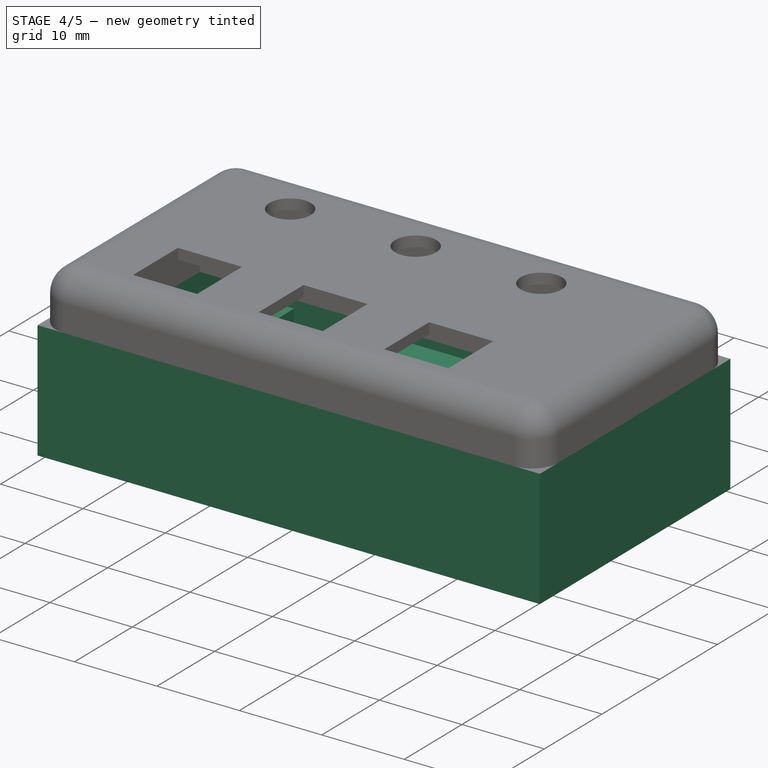
[diagram: stage 4 of 5 — iso view after this stage's code; geometry added in this stage tinted green]
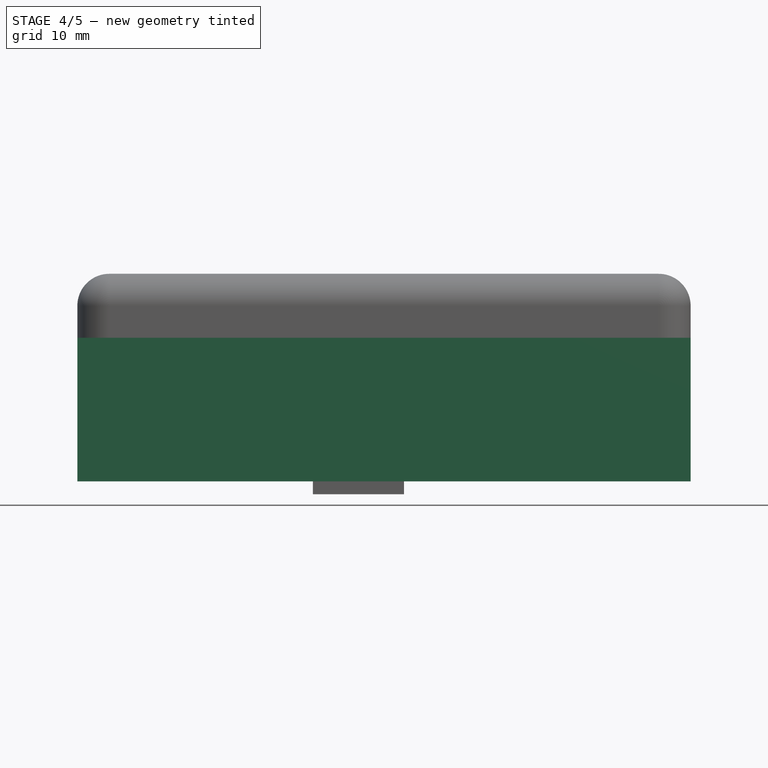
[diagram: stage 4 of 5 — front view after this stage's code; geometry added in this stage tinted green]
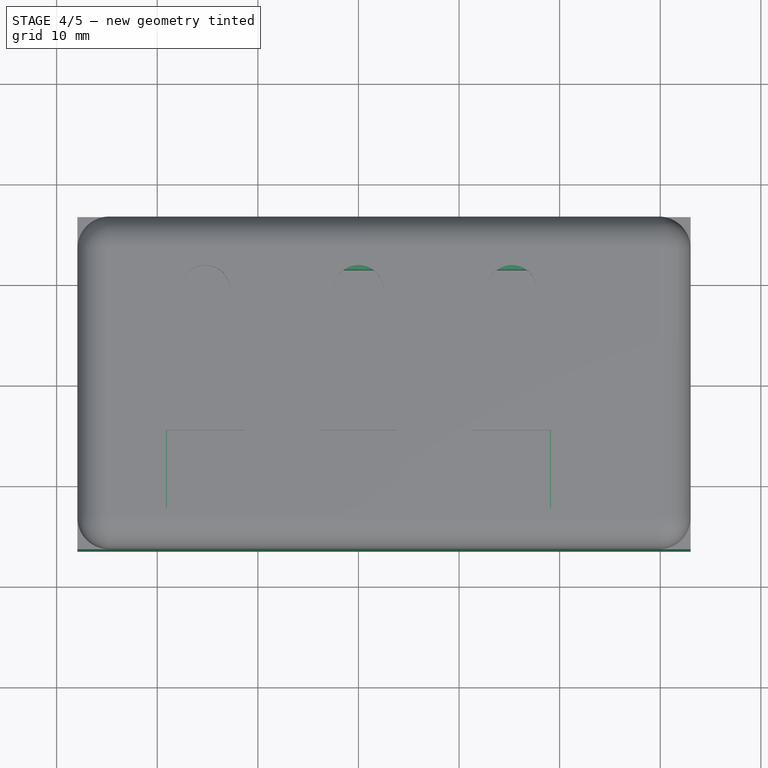
[diagram: stage 4 of 5 — top view after this stage's code; geometry added in this stage tinted green]
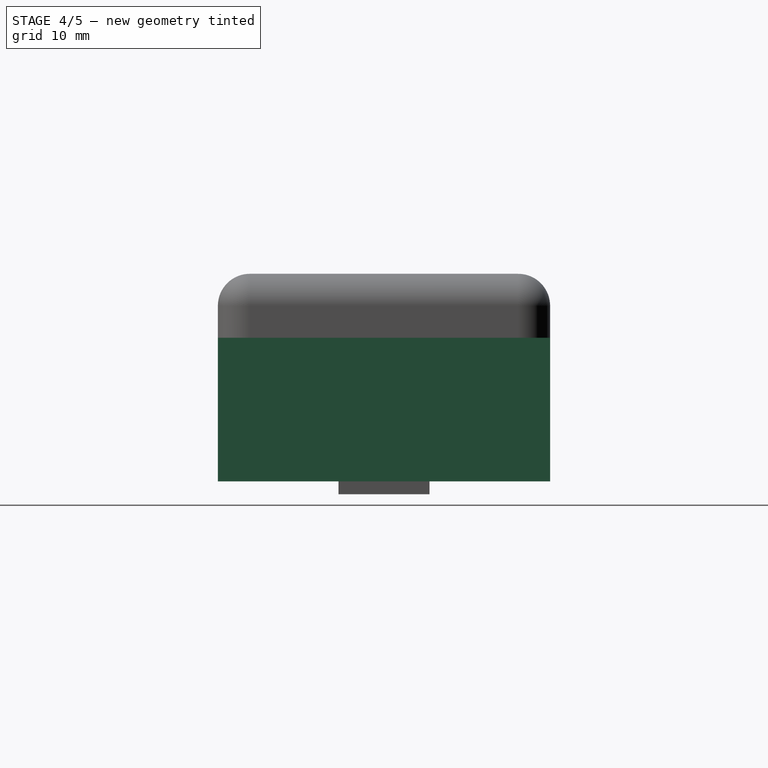
[diagram: stage 4 of 5 — right view after this stage's code; geometry added in this stage tinted green]
FEATURE [Sketcher::SketchObject] Sketch002
  ExternalGeometry = -> [Sketch001,Sketch]
  FullyConstrained = true
  MapMode = 5
  Support = -> [XY_Plane]
  expr: Constraints[31] = <<Measurements>>.wall_t
  expr: Constraints[32] = <<Measurements>>.wall_t
  expr: Constraints[35] = <<Measurements>>.wall_t
  expr: Constraints[36] = <<Measurements>>.wall_t
  expr: Constraints[4] = <<Measurements>>.battery_l
  expr: Constraints[5] = <<Measurements>>.battery_w
  sketch-geometry (15):
    g0: LineSegment StartX=-19.05 StartY=11.43 StartZ=0 EndX=19.05 EndY=11.43 EndZ=0
    g1: LineSegment StartX=19.05 StartY=11.43 StartZ=0 EndX=19.05 EndY=-15.24 EndZ=0
    g2: LineSegment StartX=19.05 StartY=-15.24 StartZ=0 EndX=-19.05 EndY=-15.24 EndZ=0
    g3: LineSegment StartX=-27.94 StartY=-16.51 StartZ=0 EndX=33.02 EndY=-16.51 EndZ=0
    g4: LineSegment StartX=33.02 StartY=-16.51 StartZ=0 EndX=33.02 EndY=16.51 EndZ=0
    g5: LineSegment StartX=33.02 StartY=16.51 StartZ=0 EndX=-27.94 EndY=16.51 EndZ=0
    g6: LineSegment StartX=-27.94 StartY=16.51 StartZ=0 EndX=-27.94 EndY=-16.51 EndZ=0
    g7: LineSegment StartX=-19.05 StartY=15.24 StartZ=0 EndX=-8.89 EndY=15.24 EndZ=0
    g8: LineSegment StartX=-8.89 StartY=15.24 StartZ=0 EndX=-8.89 EndY=11.43 EndZ=0
    g9: LineSegment StartX=-8.89 StartY=11.43 StartZ=0 EndX=19.05 EndY=11.43 EndZ=0
    g10: LineSegment StartX=25.4 StartY=15.24 StartZ=0 EndX=31.75 EndY=15.24 EndZ=0
    g11: LineSegment StartX=31.75 StartY=15.24 StartZ=0 EndX=31.75 EndY=-15.24 EndZ=0
    g12: LineSegment StartX=31.75 StartY=-15.24 StartZ=0 EndX=25.4 EndY=-15.24 EndZ=0
    g13: LineSegment StartX=25.4 StartY=-15.24 StartZ=0 EndX=25.4 EndY=15.24 EndZ=0
    g14: LineSegment StartX=-19.05 StartY=15.24 StartZ=0 EndX=-19.05 EndY=-15.24 EndZ=0
  constraints (41):
    c: Coincident(g0,g1)
    c: Coincident(g1,g2)
    c: Horizontal(g0)
    c: Vertical(g1)
    c: Distance(g0) = 38.1
    c: Distance(g1) = 26.67
    c: Coincident(g3,g4)
    c: Coincident(g4,g5)
    c: Coincident(g5,g6)
    c: Coincident(g6,g3)
    c: Horizontal(g3)
    c: Horizontal(g5)
    c: Vertical(g4)
    c: Vertical(g6)
    c: Coincident(g3,g-4)
    c: Coincident(g4,g-3)
    c: Horizontal(g7)
    c: PointOnObject(g8,g0)
    c: Vertical(g8)
    c: Coincident(g9,g8)
    c: Coincident(g9,g1)
    c: Coincident(g8,g7)
    c: Distance(g7) = 10.16
    c: Coincident(g10,g11)
    c: Coincident(g11,g12)
    c: Coincident(g12,g13)
    c: Coincident(g13,g10)
    c: Horizontal(g10)
    c: Horizontal(g12)
    c: Vertical(g13)
    c: Distance(g-5,g13) = 2.54
    c: Distance(g10,g4) = 1.27
    c: Distance(g10,g5) = 1.27
    c: Symmetric(g10,g11,g-1)
    c: Symmetric(g2,g1,g-2)
    c: Distance(g7,g5) = 1.27
    c: Distance(g2,g3) = 1.27
    c: Coincident(g14,g7)
    c: Coincident(g14,g2)
    c: Vertical(g14)
    c: PointOnObject(g0,g14)
FEATURE [PartDesign::Pad] Pad001  label="Battery Walls"
  BaseFeature = -> Pad
  Direction = (0,0,1)
  Length = 6.35
  Length2 = 10
  Profile = -> Sketch002
  ReferenceAxis = -> Sketch002 [N_Axis]
  Type = 0
  expr: Length = <<Measurements>>.battery_d
FEATURE [Sketcher::SketchObject] Sketch003
  AttachmentOffset = pos=(0,0,6.35) rot=(0,0,1;0rad)
  ExternalGeometry = -> [Sketch]
  FullyConstrained = true
  MapMode = 5
  Placement = pos=(0,0,6.35) rot=(0,0,1;0rad)
  Support = -> [XY_Plane]
  expr: .AttachmentOffset.Base.z = <<Measurements>>.battery_d
  expr: Constraints[4] = <<Measurements>>.bolt_pitch_dia
  expr: Constraints[5] = <<Measurements>>.bolt_pitch_dia
  expr: Constraints[6] = <<Measurements>>.bolt_pitch_dia
  expr: Constraints[7] = <<Measurements>>.bolt_pitch_dia
  sketch-geometry (4):
    g0: Circle CenterX=-22.86 CenterY=7.62 CenterZ=0 NormalX=0 NormalY=0 NormalZ=1 AngleXU=0 Radius=0.87
    g1: Circle CenterX=-22.86 CenterY=-10.16 CenterZ=0 NormalX=0 NormalY=0 NormalZ=1 AngleXU=0 Radius=0.87
    g2: Circle CenterX=22.86 CenterY=-10.16 CenterZ=0 NormalX=0 NormalY=0 NormalZ=1 AngleXU=0 Radius=0.87
    g3: Circle CenterX=22.86 CenterY=7.62 CenterZ=0 NormalX=0 NormalY=0 NormalZ=1 AngleXU=0 Radius=0.87
  constraints (8):
    c: Coincident(g0,g-5)
    c: Coincident(g1,g-4)
    c: Coincident(g2,g-6)
    c: Coincident(g3,g-3)
    c: Diameter(g0) = 1.74
    c: Diameter(g1) = 1.74
    c: Diameter(g2) = 1.74
    c: Diameter(g3) = 1.74
FEATURE [PartDesign::Pocket] Pocket  label="Feather Holes"
  BaseFeature = -> Pad001
  Direction = (0,0,-1)
  Length = 5.08
  Length2 = 5
  Profile = -> Sketch003
  ReferenceAxis = -> Sketch003 [N_Axis]
  Type = 0
  expr: Length = <<Measurements>>.battery_d - <<Measurements>>.wall_t
FEATURE [Sketcher::SketchObject] Sketch005  label="Button PCB Sk"
  ExternalGeometry = -> [Sketch001]
  FullyConstrained = true
  MapMode = 5
  Support = -> [XY_Plane]
  sketch-geometry (22):
    g0: LineSegment StartX=-21.924 StartY=3.01399 StartZ=0 EndX=22.78 EndY=3.01399 EndZ=0
    g1: LineSegment StartX=22.78 StartY=3.01399 StartZ=0 EndX=22.78 EndY=-15.24 EndZ=0
    g2: LineSegment StartX=22.78 StartY=-15.24 StartZ=0 EndX=-21.924 EndY=-15.24 EndZ=0
    g3: LineSegment StartX=-21.924 StartY=-15.24 StartZ=0 EndX=-21.924 EndY=3.01399 EndZ=0
    g4: LineSegment StartX=-17.78 StartY=-12.463 StartZ=0 EndX=17.78 EndY=-12.463 EndZ=0
    g5: LineSegment StartX=17.78 StartY=-12.463 StartZ=0 EndX=17.78 EndY=0.236994 EndZ=0
    g6: LineSegment StartX=17.78 StartY=0.236994 StartZ=0 EndX=-17.78 EndY=0.236994 EndZ=0
    g7: LineSegment StartX=-17.78 StartY=0.236994 StartZ=0 EndX=-17.78 EndY=-12.463 EndZ=0
    g8: LineSegment StartX=-17.78 StartY=-4.84301 StartZ=0 EndX=-12.7 EndY=-4.84301 EndZ=0
    g9: LineSegment StartX=-12.7 StartY=-4.84301 StartZ=0 EndX=-12.7 EndY=-12.463 EndZ=0
    g10: LineSegment StartX=-12.7 StartY=-12.463 StartZ=0 EndX=-17.78 EndY=-12.463 EndZ=0
    g11: LineSegment StartX=-17.78 StartY=-12.463 StartZ=0 EndX=-17.78 EndY=-4.84301 EndZ=0
    g12: LineSegment StartX=17.78 StartY=0.236994 StartZ=0 EndX=17.78 EndY=3.01399 EndZ=0
    g13: LineSegment StartX=17.78 StartY=-12.463 StartZ=0 EndX=17.78 EndY=-15.24 EndZ=0
    g14: LineSegment StartX=17.78 StartY=-4.84301 StartZ=0 EndX=12.7 EndY=-4.84301 EndZ=0
    g15: LineSegment StartX=12.7 StartY=-4.84301 StartZ=0 EndX=12.7 EndY=-12.463 EndZ=0
    g16: LineSegment StartX=12.7 StartY=-12.463 StartZ=0 EndX=17.78 EndY=-12.463 EndZ=0
    g17: LineSegment StartX=17.78 StartY=-12.463 StartZ=0 EndX=17.78 EndY=-4.84301 EndZ=0
    g18: LineSegment StartX=-2.54 StartY=-12.463 StartZ=0 EndX=2.54 EndY=-12.463 EndZ=0
    g19: LineSegment StartX=2.54 StartY=-12.463 StartZ=0 EndX=2.54 EndY=-4.84301 EndZ=0
    g20: LineSegment StartX=2.54 StartY=-4.84301 StartZ=0 EndX=-2.54 EndY=-4.84301 EndZ=0
    g21: LineSegment StartX=-2.54 StartY=-4.84301 StartZ=0 EndX=-2.54 EndY=-12.463 EndZ=0
  constraints (62):
    c: Coincident(g0,g1)
    c: Coincident(g1,g2)
    c: Coincident(g2,g3)
    c: Coincident(g3,g0)
    c: Horizontal(g0)
    c: Vertical(g1)
    c: Vertical(g3)
    c: Distance(g1) = 18.254
    c: Distance(g0) = 44.704
    c: Distance(g2,g-3) = 1.27
    c: Coincident(g4,g5)
    c: Coincident(g5,g6)
    c: Coincident(g6,g7)
    c: Coincident(g7,g4)
    c: Vertical(g5)
    c: Vertical(g7)
    c: Distance(g5) = 12.7
    c: Distance(g6) = 35.56
    c: Coincident(g8,g9)
    c: Coincident(g9,g10)
    c: Coincident(g10,g11)
    c: Coincident(g11,g8)
    c: Horizontal(g8)
    c: Horizontal(g10)
    c: Vertical(g9)
    c: Vertical(g11)
    c: Distance(g9) = 7.62
    c: Distance(g10) = 5.08
    c: Distance(g5,g1) = 5
    c: Perpendicular(g5,g6)
    c: Symmetric(g4,g4,g-2)
    c: Coincident(g12,g5)
    c: PointOnObject(g12,g0)
    c: Vertical(g12)
    c: PointOnObject(g13,g2)
    c: Vertical(g13)
    c: Equal(g12,g13)
    c: Perpendicular(g1,g2)
    c: Coincident(g13,g4)
    c: Coincident(g14,g15)
    c: Coincident(g15,g16)
    c: Coincident(g16,g17)
    c: Coincident(g17,g14)
    c: Horizontal(g14)
    c: Horizontal(g16)
    c: Vertical(g15)
    c: Vertical(g17)
    c: Coincident(g18,g19)
    c: Coincident(g19,g20)
    c: Coincident(g20,g21)
    c: Horizontal(g18)
    c: Vertical(g19)
    c: Vertical(g21)
    c: Equal(g9,g21)
    c: Equal(g9,g15)
    c: Equal(g10,g18)
    c: Equal(g10,g16)
    c: Symmetric(g20,g19,g-2)
    c: Coincident(g10,g4)
    c: Coincident(g16,g4)
    c: Coincident(g18,g21)
    c: PointOnObject(g18,g4)
FEATURE [Sketcher::SketchObject] Sketch004
  AttachmentOffset = pos=(0,0,6.35) rot=(0,0,1;0rad)
  ExternalGeometry = -> [Sketch001,Sketch005,Sketch002]
  FullyConstrained = true
  MapMode = 5
  Placement = pos=(0,0,6.35) rot=(0,0,1;0rad)
  Support = -> [XY_Plane]
  expr: Constraints[15] = <<Measurements>>.wall_t
  expr: Constraints[16] = <<Measurements>>.wall_t
  expr: Constraints[17] = <<Measurements>>.wall_t
  expr: Constraints[22] = <<Measurements>>.wall_t
  sketch-geometry (16):
    g0: LineSegment StartX=-27.94 StartY=-16.51 StartZ=0 EndX=33.02 EndY=-16.51 EndZ=0
    g1: LineSegment StartX=33.02 StartY=-16.51 StartZ=0 EndX=33.02 EndY=16.51 EndZ=0
    g2: LineSegment StartX=33.02 StartY=16.51 StartZ=0 EndX=-27.94 EndY=16.51 EndZ=0
    g3: LineSegment StartX=-27.94 StartY=16.51 StartZ=0 EndX=-27.94 EndY=-16.51 EndZ=0
    g4: LineSegment StartX=-26.67 StartY=-15.24 StartZ=0 EndX=-21.924 EndY=-15.24 EndZ=0
    g5: LineSegment StartX=31.75 StartY=-15.24 StartZ=0 EndX=31.75 EndY=15.24 EndZ=0
    g6: LineSegment StartX=-26.67 StartY=15.24 StartZ=0 EndX=-26.67 EndY=-15.24 EndZ=0
    g7: LineSegment StartX=22.78 StartY=-13.97 StartZ=0 EndX=22.78 EndY=-15.24 EndZ=0
    g8: LineSegment StartX=-21.924 StartY=-15.24 StartZ=0 EndX=-21.924 EndY=-13.97 EndZ=0
    g9: LineSegment StartX=22.78 StartY=-15.24 StartZ=0 EndX=31.75 EndY=-15.24 EndZ=0
    g10: LineSegment StartX=19.05 StartY=-13.97 StartZ=0 EndX=22.78 EndY=-13.97 EndZ=0
    g11: LineSegment StartX=-26.67 StartY=15.24 StartZ=0 EndX=31.75 EndY=15.24 EndZ=0
    g12: LineSegment StartX=-21.924 StartY=-13.97 StartZ=0 EndX=-19.05 EndY=-13.97 EndZ=0
    g13: LineSegment StartX=-19.05 StartY=-13.97 StartZ=0 EndX=-19.05 EndY=-15.24 EndZ=0
    g14: LineSegment StartX=-19.05 StartY=-15.24 StartZ=0 EndX=19.05 EndY=-15.24 EndZ=0
    g15: LineSegment StartX=19.05 StartY=-15.24 StartZ=0 EndX=19.05 EndY=-13.97 EndZ=0
  constraints (42):
    c: Coincident(g0,g1)
    c: Coincident(g1,g2)
    c: Coincident(g2,g3)
    c: Coincident(g3,g0)
    c: Horizontal(g0)
    c: Horizontal(g2)
    c: Vertical(g1)
    c: Vertical(g3)
    c: Coincident(g0,g-4)
    c: Coincident(g1,g-3)
    c: Coincident(g9,g5)
    c: Coincident(g6,g4)
    c: Horizontal(g4)
    c: Vertical(g5)
    c: Vertical(g6)
    c: Distance(g5,g2) = 1.27
    c: Distance(g5,g1) = 1.27
    c: Distance(g4,g3) = 1.27
    c: Coincident(g10,g7)
    c: Vertical(g7)
    c: Vertical(g8)
    c: Coincident(g-5,g7)
    c: Distance(g7) = 1.27
    c: Coincident(g8,g4)
    c: Coincident(g-6,g4)
    c: Horizontal(g9)
    c: Coincident(g7,g9)
    c: Horizontal(g10)
    c: Coincident(g11,g6)
    c: Coincident(g11,g5)
    c: Horizontal(g11)
    c: PointOnObject(g10,g-7)
    c: Coincident(g12,g8)
    c: PointOnObject(g12,g-8)
    c: Horizontal(g12)
    c: Coincident(g13,g12)
    c: Coincident(g13,g-8)
    c: Coincident(g14,g13)
    c: Coincident(g14,g-7)
    c: Coincident(g15,g14)
    c: Coincident(g15,g10)
    c: PointOnObject(g12,g10)
FEATURE [PartDesign::Pad] Pad002  label="Upper Walls"
  BaseFeature = -> Pocket
  Direction = (0,0,1)
  Length = 7.9375
  Length2 = 10
  Profile = -> Sketch004
  ReferenceAxis = -> Sketch004 [N_Axis]
  Type = 0
  expr: Length = 5 in / 16
FEATURE [Sketcher::SketchObject] Sketch009
  ExternalGeometry = -> [Sketch001]
  FullyConstrained = true
  MapMode = 5
  Support = -> [XY_Plane]
  expr: Constraints[0] = <<Measurements>>.bolt_maj_dia + <<Measurements>>.fit_margin
  expr: Constraints[19] = <<Measurements>>.bolt_inset
  expr: Constraints[1] = <<Measurements>>.bolt_maj_dia + <<Measurements>>.fit_margin
  expr: Constraints[2] = <<Measurements>>.bolt_maj_dia + <<Measurements>>.fit_margin
  expr: Constraints[3] = <<Measurements>>.bolt_maj_dia + <<Measurements>>.fit_margin
  expr: Constraints[4] = <<Measurements>>.bolt_inset
  expr: Constraints[5] = <<Measurements>>.bolt_inset
  expr: Constraints[6] = <<Measurements>>.bolt_inset
  sketch-geometry (8):
    g0: Circle CenterX=-24.765 CenterY=13.335 CenterZ=0 NormalX=0 NormalY=0 NormalZ=1 AngleXU=0 Radius=1.127
    g1: Circle CenterX=29.845 CenterY=13.335 CenterZ=0 NormalX=0 NormalY=0 NormalZ=1 AngleXU=0 Radius=1.127
    g2: Circle CenterX=29.845 CenterY=-13.335 CenterZ=0 NormalX=0 NormalY=0 NormalZ=1 AngleXU=0 Radius=1.127
    g3: Circle CenterX=-24.765 CenterY=-13.335 CenterZ=0 NormalX=0 NormalY=0 NormalZ=1 AngleXU=0 Radius=1.127
    g4: LineSegment StartX=-24.765 StartY=13.335 StartZ=0 EndX=29.845 EndY=13.335 EndZ=0
    g5: LineSegment StartX=29.845 StartY=13.335 StartZ=0 EndX=29.845 EndY=-13.335 EndZ=0
    g6: LineSegment StartX=-24.765 StartY=-13.335 StartZ=0 EndX=29.845 EndY=-13.335 EndZ=0
    g7: LineSegment StartX=-24.765 StartY=13.335 StartZ=0 EndX=-24.765 EndY=-13.335 EndZ=0
  constraints (20):
    c: Diameter(g1) = 2.254
    c: Diameter(g2) = 2.254
    c: Diameter(g3) = 2.254
    c: Diameter(g0) = 2.254
    c: Distance(g1,g-3) = 3.175
    c: Distance(g0,g-6) = 3.175
    c: Distance(g1,g-5) = 3.175
    c: Coincident(g4,g0)
    c: Coincident(g4,g1)
    c: Coincident(g5,g1)
    c: Coincident(g5,g2)
    c: Vertical(g5)
    c: Coincident(g6,g3)
    c: Coincident(g6,g2)
    c: Horizontal(g6)
    c: Horizontal(g4)
    c: Coincident(g7,g0)
    c: Coincident(g7,g3)
    c: Vertical(g7)
    c: Distance(g3,g-4) = 3.175
FEATURE [PartDesign::Pocket] Pocket001  label="Attachment Holes"
  BaseFeature = -> Pad002
  Direction = (0,0,-1)
  Length = 5
  Length2 = 5
  Profile = -> Sketch009
  ReferenceAxis = -> Sketch009 [N_Axis]
  Refine = true
  Reversed = true
  Type = 1
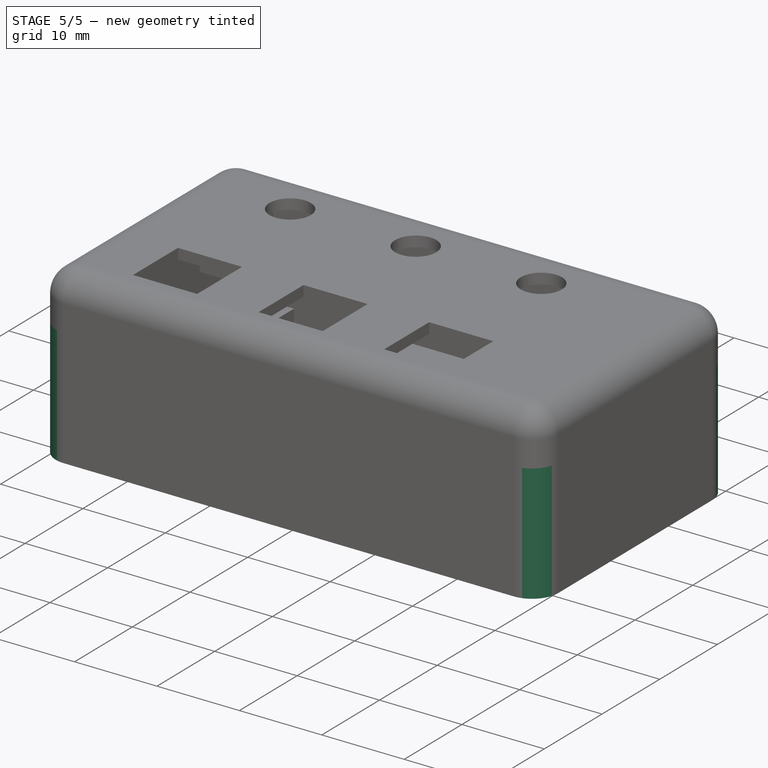
[diagram: stage 5 of 5 — iso view after this stage's code; geometry added in this stage tinted green]
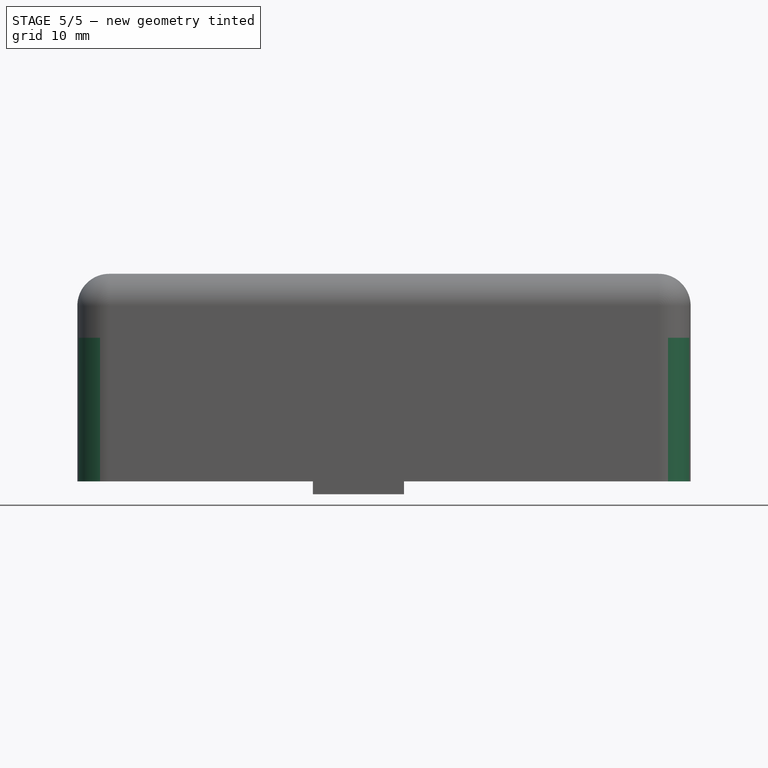
[diagram: stage 5 of 5 — front view after this stage's code; geometry added in this stage tinted green]
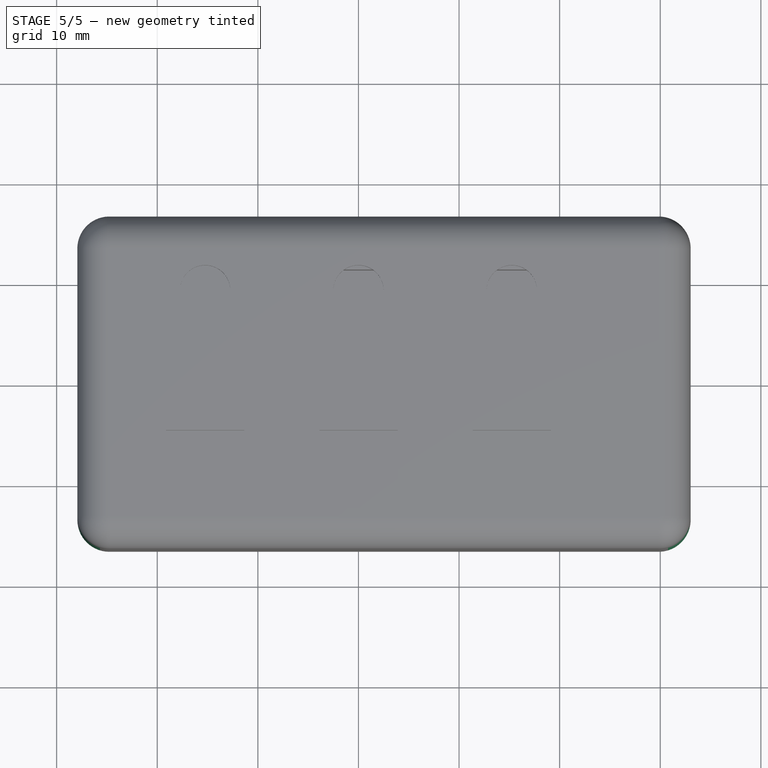
[diagram: stage 5 of 5 — top view after this stage's code; geometry added in this stage tinted green]
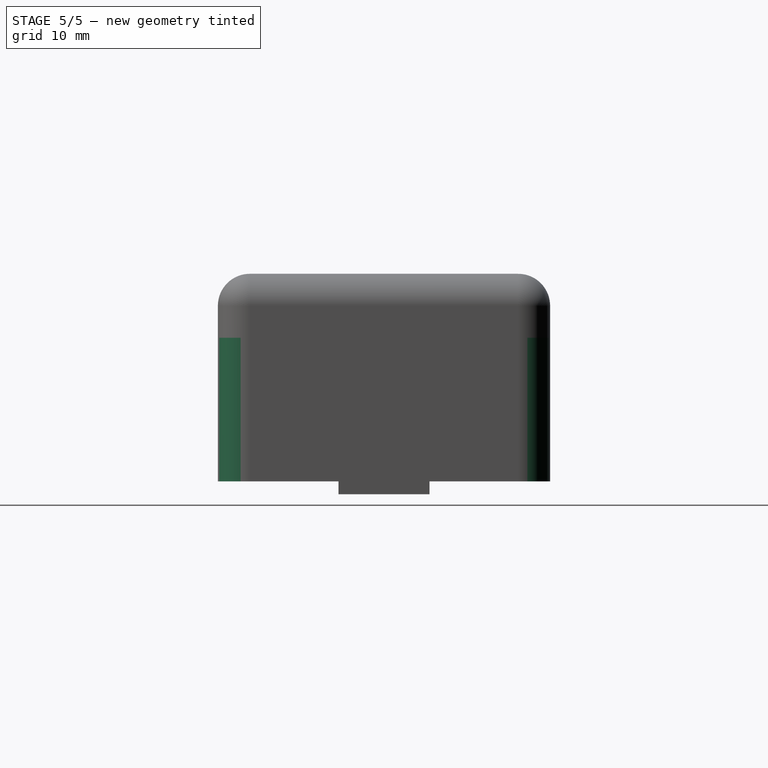
[diagram: stage 5 of 5 — right view after this stage's code; geometry added in this stage tinted green]
FEATURE [PartDesign::Fillet] Fillet001  label="Corner Fillet"
  Base = -> Pocket001 [Edge82,Edge80,Edge79,Edge84]
  BaseFeature = -> Pocket001
  Radius = 3.175
  SupportTransform = false
  UseAllEdges = false
  expr: Radius = <<Measurements>>.bolt_inset
FEATURE [PartDesign::Chamfer] Chamfer  label="Bolt Countersink"
  Angle = 45
  Base = -> Fillet001 [Edge75,Edge73,Edge74,Edge72]
  BaseFeature = -> Fillet001
  ChamferType = 0
  FlipDirection = false
  Size = 0.762
  Size2 = 1
  SupportTransform = false
  UseAllEdges = false
FEATURE [Spreadsheet::Sheet] Spreadsheet  label="Measurements"
  cells = B2='Bolt pitch dia; C2(bolt_pitch_dia)==1.74 mm; E2='Wall thickness; F2(wall_t)==0.05 in; B3='Bolt major dia; C3(bolt_maj_dia)==2 mm; E3='Bolt inset; F3(bolt_inset)==0.125 in; B4='Fit margin; C4(fit_margin)==0.01 in; E5='Button hole w; F5(btn_hole_w)==wall_t + 2 * fit_margin + switch_w; B6='Battery depth; C6(battery_d)==0.25 in; E6='Button hole h; F6(btn_hole_h)==wall_t + 2 * fit_margin + switch_h; B7='Battery width; C7(battery_w)==1.05 in; B8='Battery length; C8(battery_l)==1.5 in; E8='Switch w; F8(switch_w)==6 mm; E9='Switch h; F9(switch_h)==6 mm; E11='Button protrusion; F11(btn_prot)==0.05 in
FEATURE [PartDesign::Fillet] Fillet
  Base = -> Chamfer [Edge84,Edge62,Edge87,Edge61]
  BaseFeature = -> Chamfer
  Radius = 1.905
  SupportTransform = false
  UseAllEdges = false
  expr: Radius = <<Measurements>>.bolt_inset - <<Measurements>>.wall_t
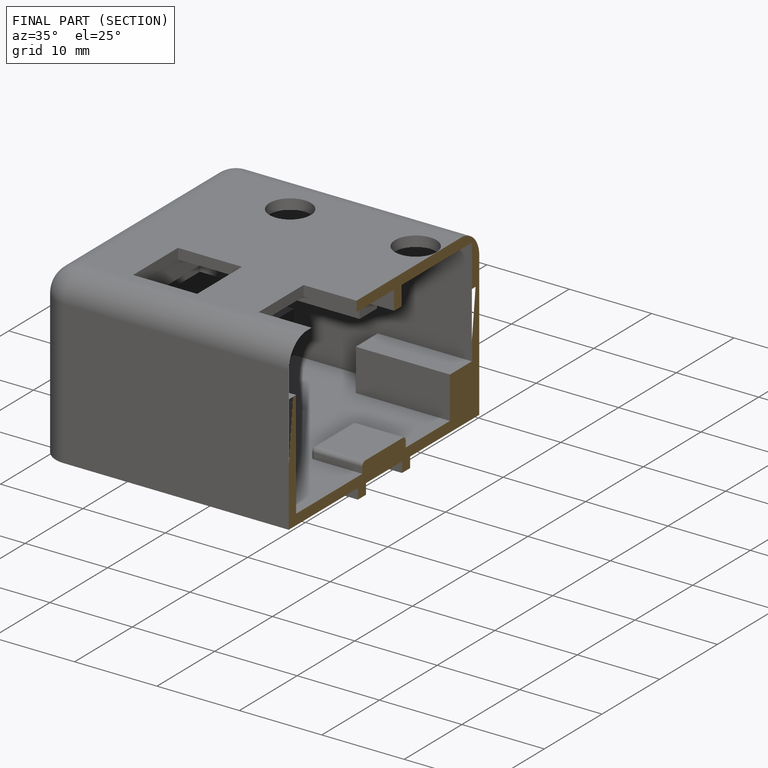
[diagram: finished part — half-section view (interior)]
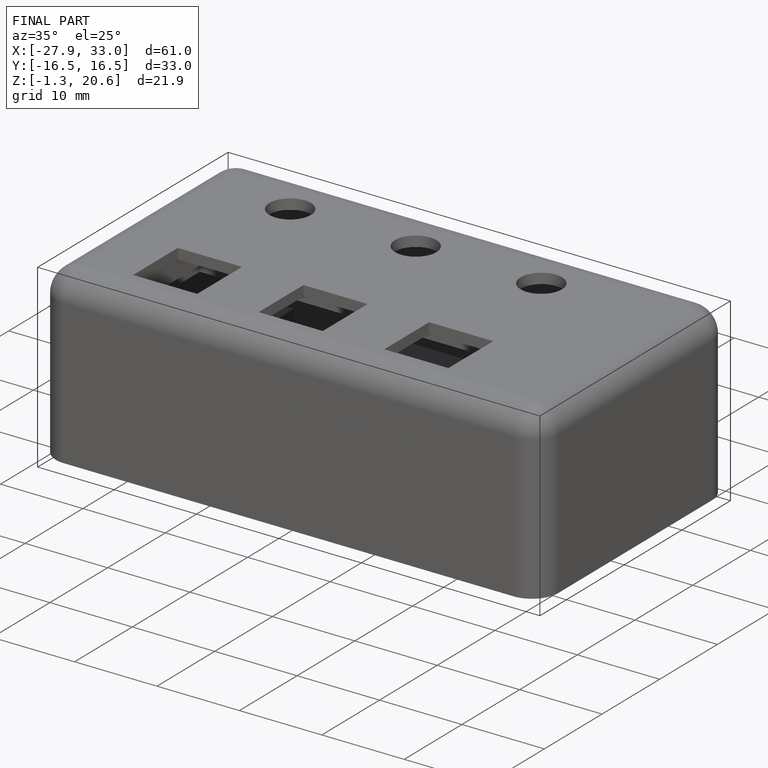
[diagram: finished part — iso view with bounding-box wireframe]
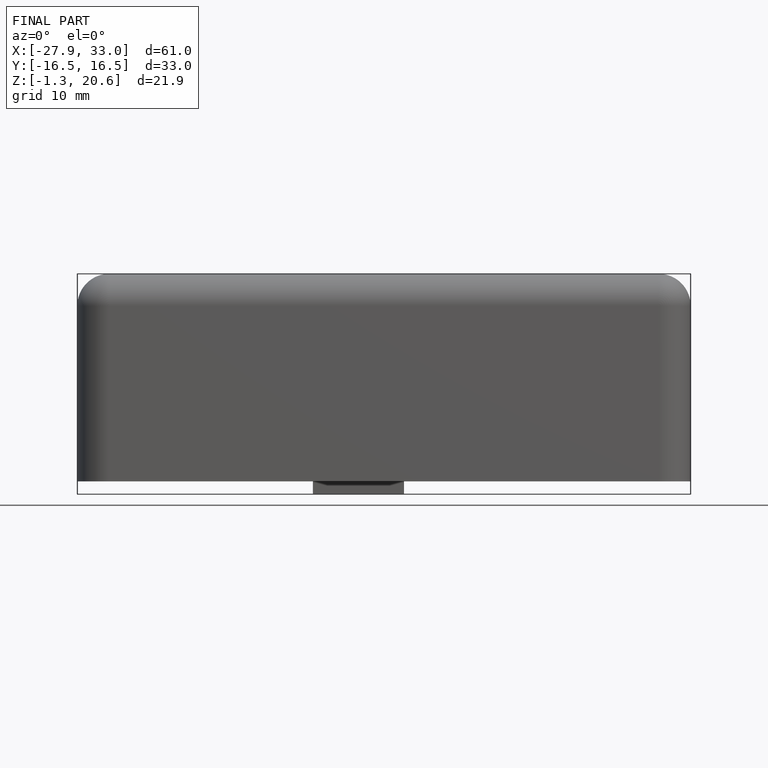
[diagram: finished part — front view with bounding-box wireframe]
